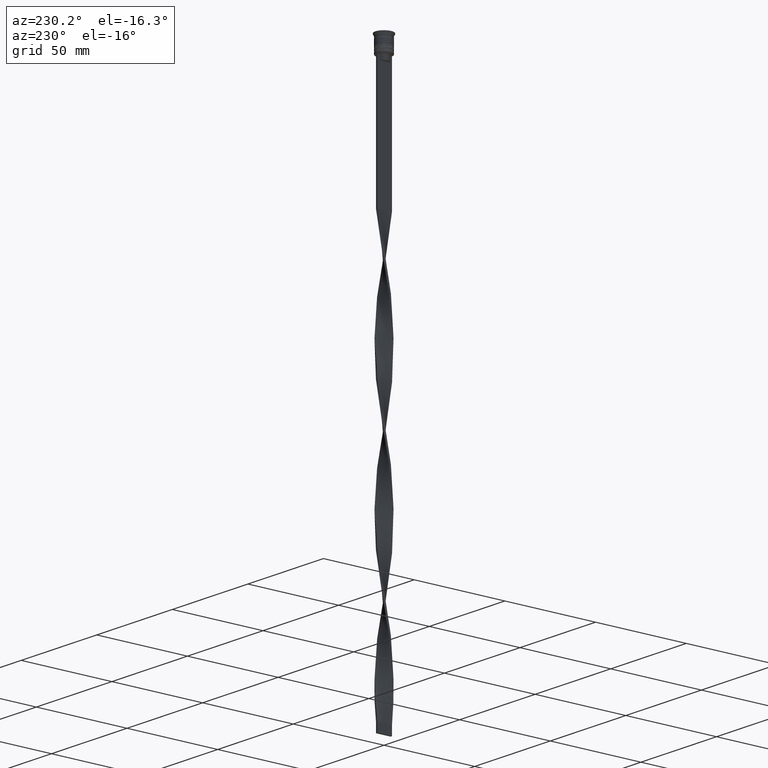
[diagram: clean part render]
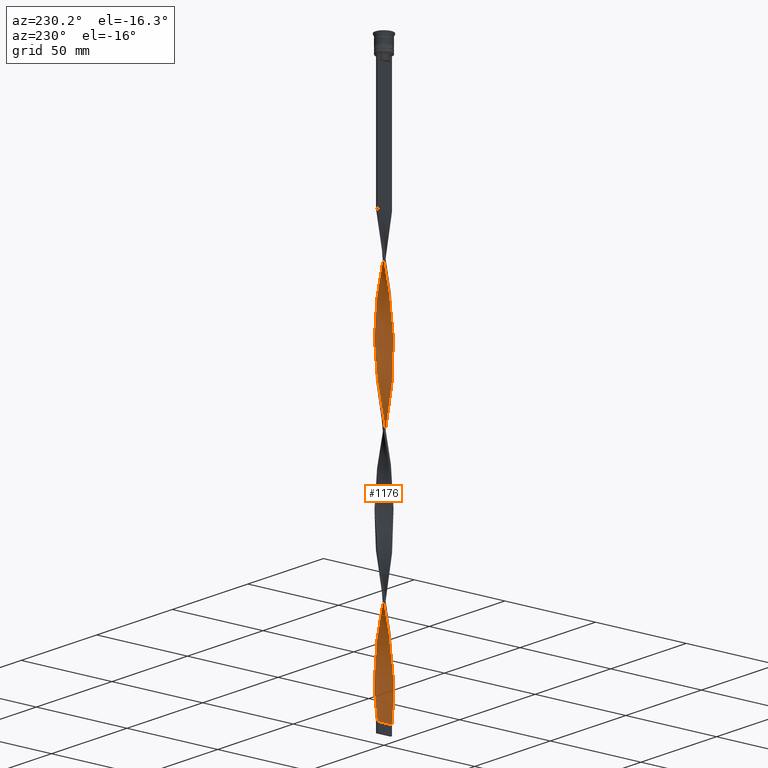
[diagram: same view with one face highlighted and labeled with its STEP entity id]
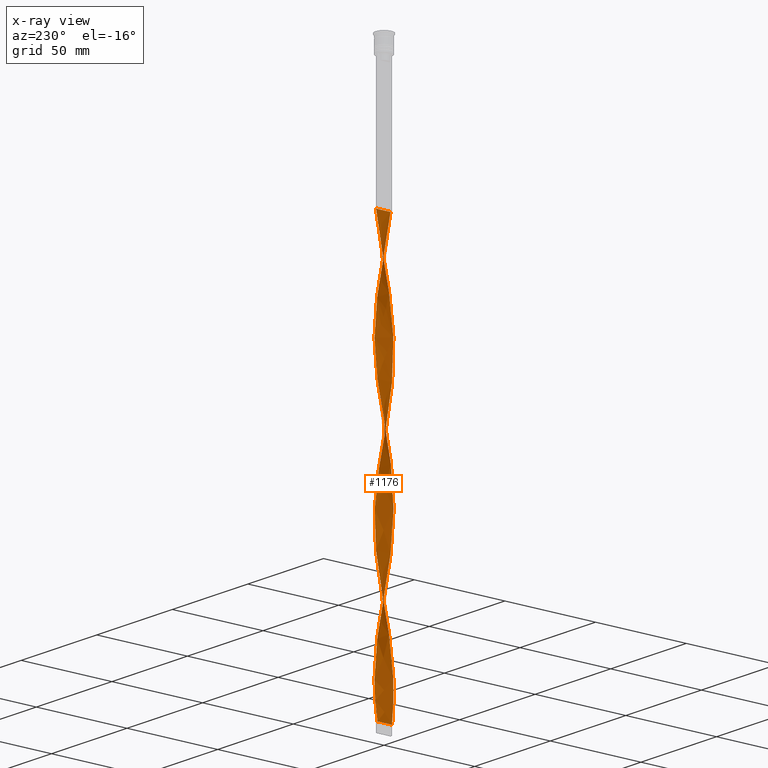
[diagram: x-ray of the same camera — body ghosted, the highlighted face saturated]
A machine part, auxiliary view. The second image highlights one B-rep face of the part: STEP entity #1176.
The next image is the same camera in x-ray: the body ghosted, the highlighted face saturated — about 0% of this face is hidden behind the body in this view.
In plain terms, the highlighted face is a freeform B-spline surface patch.
Its self-contained STEP definition (entity closure, byte-faithful):
#3 = CARTESIAN_POINT ( 'NONE',  ( 4.027627644762845627, 0.1679748646140053203, -264.7631578947368780 ) ) ;
#6 = CARTESIAN_POINT ( 'NONE',  ( 2.604254856879656632, 3.076988241839529348, -284.6315789473683822 ) ) ;
#10 = CARTESIAN_POINT ( 'NONE',  ( 0.1685505501969309927, -4.041431181225382474, -227.0131578947368212 ) ) ;
#19 = CARTESIAN_POINT ( 'NONE',  ( 1.771706497669052194, 3.620919232200196181, -221.0526315789473983 ) ) ;
#27 = CARTESIAN_POINT ( 'NONE',  ( 0.4989459690400829817, 4.014053836277128973, -298.5394736842104635 ) ) ;
#38 = CARTESIAN_POINT ( 'NONE',  ( -2.071744419492577816, -3.474111446233965061, -294.5657894736841627 ) ) ;
#44 = CARTESIAN_POINT ( 'NONE',  ( 3.633328892441398672, 1.777778512611467576, -123.6973684210526443 ) ) ;
#45 = CARTESIAN_POINT ( 'NONE',  ( 1.152832542896752965, 3.877183566532631076, -143.5657894736842195 ) ) ;
#46 = CARTESIAN_POINT ( 'NONE',  ( -2.349288341927602719, -3.292782951704460448, -211.1184210526315326 ) ) ;
#49 =( BOUNDED_SURFACE ( )  B_SPLINE_SURFACE ( 1, 2, ( 
 ( #3845, #3211, #1995, #1406, #2282, #3568, #3273, #1740, #1427, #2587, #2983, #2355, #816, #3300, #3001, #3530, #3387, #929, #2403, #3407, #1859, #2681, #860, #561, #2177, #2797, #3116, #2205, #665, #2196, #3819, #3438, #660, #3129, #2847, #1058, #531, #2327, #2037, #3890, #3851, #2343, #3217, #3279, #196, #1101, #1076, #2989, #746, #1766, #2019, #3260, #1456, #222, #143, #2303, #1371, #2593, #1691, #1979, #456, #885, #592, #610, #1160, #1513, #2100, #240, #3689, #3068, #2080, #2776, #19, #3709, #1732, #230, #3881, #481, #1465, #777, #795, #499, #2973, #2660, #1132, #637, #2844, #84, #3382, #2492, #3076, #3702, #924, #1257, #2823, #3128, #2154, #620, #2474, #943, #349, #2595, #1123, #3593, #2041, #2407, #3320, #3340, #1510, #2322, #838, #558, #2747, #1481, #2698 ),
 ( #522, #1733, #231, #3639, #855, #539, #2070, #2661, #3017, #3901, #2420, #1133, #250, #3334, #1794, #3658, #876, #3357, #582, #1820, #351, #2218, #903, #44, #3182, #3227, #1697, #1084, #696, #2812, #1880, #1271, #3114, #45, #2851, #2828, #1047, #3540, #2870, #465, #776, #3581, #2008, #1332, #1021, #794, #3252, #2952, #187, #2028, #2256, #3499, #210, #3288, #1463, #3917, #2370, #3613, #2068, #3169, #3797, #3522, #405, #1970, #986, #154, #87, #2220, #3777, #1914, #1638, #2871, #3824, #369, #1002, #2235, #3440, #3184, #3475, #662, #1898, #3149, #2829, #106, #3500, #1600, #3131, #1952, #2891, #2200, #126, #1352, #1292, #3858, #3899, #1130, #3615, #2352, #2045, #3719, #944, #324, #289, #3400, #6, #3112, #3960, #3938, #556, #270, #1816, #1258, #2437, #3035, #1579 ) ),
 .UNSPECIFIED., .F., .F., .F. ) 
 B_SPLINE_SURFACE_WITH_KNOTS ( ( 2, 2 ),
 ( 3, 2, 2, 2, 2, 2, 2, 2, 2, 2, 2, 2, 2, 2, 2, 2, 2, 2, 2, 2, 2, 2, 2, 2, 2, 2, 2, 2, 2, 2, 2, 2, 2, 2, 2, 2, 2, 2, 2, 2, 2, 2, 2, 2, 2, 2, 2, 2, 2, 2, 2, 2, 2, 2, 2, 2, 2, 3 ),
 ( 0.000000000000000000, 1.000000000000000000 ),
 ( 0.000000000000000000, 0.01315789473684210453, 0.02631578947368420907, 0.03947368421052631360, 0.05263157894736841813, 0.06578947368421052266, 0.07894736842105262720, 0.09210526315789473173, 0.1052631578947368363, 0.1184210526315789408, 0.1315789473684210453, 0.1447368421052631637, 0.1578947368421052544, 0.1710526315789473728, 0.1842105263157894635, 0.1973684210526315819, 0.2105263157894736725, 0.2236842105263157909, 0.2368421052631578816, 0.2500000000000000000, 0.2631578947368420907, 0.2763157894736842368, 0.2894736842105263275, 0.3026315789473684181, 0.3157894736842105088, 0.3289473684210526550, 0.3421052631578947456, 0.3552631578947368363, 0.3684210526315789269, 0.3815789473684210731, 0.3947368421052631637, 0.4078947368421052544, 0.4210526315789473450, 0.4342105263157894912, 0.4473684210526315819, 0.4605263157894736725, 0.4736842105263157632, 0.4868421052631579093, 0.5000000000000000000, 0.5131578947368421462, 0.5263157894736841813, 0.5394736842105263275, 0.5526315789473684736, 0.5657894736842105088, 0.5789473684210526550, 0.5921052631578946901, 0.6052631578947368363, 0.6184210526315789824, 0.6315789473684210176, 0.6447368421052631637, 0.6578947368421053099, 0.6710526315789473450, 0.6842105263157894912, 0.6973684210526315264, 0.7105263157894736725, 0.7236842105263158187, 0.7368421052631578538, 0.7500000000000000000 ),
 .UNSPECIFIED. ) 
 GEOMETRIC_REPRESENTATION_ITEM ( )  RATIONAL_B_SPLINE_SURFACE ( (
 ( 1.000000000000000000, 0.9965844930066698470, 1.000000000000000000, 0.9965844930066698470, 1.000000000000000000, 0.9965844930066698470, 1.000000000000000000, 0.9965844930066698470, 1.000000000000000000, 0.9965844930066698470, 1.000000000000000000, 0.9965844930066698470, 1.000000000000000000, 0.9965844930066698470, 1.000000000000000000, 0.9965844930066698470, 1.000000000000000000, 0.9965844930066698470, 1.000000000000000000, 0.9965844930066698470, 1.000000000000000000, 0.9965844930066698470, 1.000000000000000000, 0.9965844930066698470, 1.000000000000000000, 0.9965844930066698470, 1.000000000000000000, 0.9965844930066698470, 1.000000000000000000, 0.9965844930066698470, 1.000000000000000000, 0.9965844930066698470, 1.000000000000000000, 0.9965844930066698470, 1.000000000000000000, 0.9965844930066698470, 1.000000000000000000, 0.9965844930066698470, 1.000000000000000000, 0.9965844930066698470, 1.000000000000000000, 0.9965844930066698470, 1.000000000000000000, 0.9965844930066698470, 1.000000000000000000, 0.9965844930066698470, 1.000000000000000000, 0.9965844930066698470, 1.000000000000000000, 0.9965844930066698470, 1.000000000000000000, 0.9965844930066698470, 1.000000000000000000, 0.9965844930066698470, 1.000000000000000000, 0.9965844930066698470, 1.000000000000000000, 0.9965844930066698470, 1.000000000000000000, 0.9965844930066698470, 1.000000000000000000, 0.9965844930066698470, 1.000000000000000000, 0.9965844930066698470, 1.000000000000000000, 0.9965844930066698470, 1.000000000000000000, 0.9965844930066698470, 1.000000000000000000, 0.9965844930066698470, 1.000000000000000000, 0.9965844930066698470, 1.000000000000000000, 0.9965844930066698470, 1.000000000000000000, 0.9965844930066698470, 1.000000000000000000, 0.9965844930066698470, 1.000000000000000000, 0.9965844930066698470, 1.000000000000000000, 0.9965844930066698470, 1.000000000000000000, 0.9965844930066698470, 1.000000000000000000, 0.9965844930066698470, 1.000000000000000000, 0.9965844930066698470, 1.000000000000000000, 0.9965844930066698470, 1.000000000000000000, 0.9965844930066698470, 1.000000000000000000, 0.9965844930066698470, 1.000000000000000000, 0.9965844930066698470, 1.000000000000000000, 0.9965844930066698470, 1.000000000000000000, 0.9965844930066698470, 1.000000000000000000, 0.9965844930066698470, 1.000000000000000000, 0.9965844930066698470, 1.000000000000000000, 0.9965844930066698470, 1.000000000000000000, 0.9965844930066698470, 1.000000000000000000, 0.9965844930066698470, 1.000000000000000000, 0.9965844930066698470, 1.000000000000000000, 0.9965844930066698470, 1.000000000000000000),
 ( 1.000000000000000000, 0.9965844930066698470, 1.000000000000000000, 0.9965844930066698470, 1.000000000000000000, 0.9965844930066698470, 1.000000000000000000, 0.9965844930066698470, 1.000000000000000000, 0.9965844930066698470, 1.000000000000000000, 0.9965844930066698470, 1.000000000000000000, 0.9965844930066698470, 1.000000000000000000, 0.9965844930066698470, 1.000000000000000000, 0.9965844930066698470, 1.000000000000000000, 0.9965844930066698470, 1.000000000000000000, 0.9965844930066698470, 1.000000000000000000, 0.9965844930066698470, 1.000000000000000000, 0.9965844930066698470, 1.000000000000000000, 0.9965844930066698470, 1.000000000000000000, 0.9965844930066698470, 1.000000000000000000, 0.9965844930066698470, 1.000000000000000000, 0.9965844930066698470, 1.000000000000000000, 0.9965844930066698470, 1.000000000000000000, 0.9965844930066698470, 1.000000000000000000, 0.9965844930066698470, 1.000000000000000000, 0.9965844930066698470, 1.000000000000000000, 0.9965844930066698470, 1.000000000000000000, 0.9965844930066698470, 1.000000000000000000, 0.9965844930066698470, 1.000000000000000000, 0.9965844930066698470, 1.000000000000000000, 0.9965844930066698470, 1.000000000000000000, 0.9965844930066698470, 1.000000000000000000, 0.9965844930066698470, 1.000000000000000000, 0.9965844930066698470, 1.000000000000000000, 0.9965844930066698470, 1.000000000000000000, 0.9965844930066698470, 1.000000000000000000, 0.9965844930066698470, 1.000000000000000000, 0.9965844930066698470, 1.000000000000000000, 0.9965844930066698470, 1.000000000000000000, 0.9965844930066698470, 1.000000000000000000, 0.9965844930066698470, 1.000000000000000000, 0.9965844930066698470, 1.000000000000000000, 0.9965844930066698470, 1.000000000000000000, 0.9965844930066698470, 1.000000000000000000, 0.9965844930066698470, 1.000000000000000000, 0.9965844930066698470, 1.000000000000000000, 0.9965844930066698470, 1.000000000000000000, 0.9965844930066698470, 1.000000000000000000, 0.9965844930066698470, 1.000000000000000000, 0.9965844930066698470, 1.000000000000000000, 0.9965844930066698470, 1.000000000000000000, 0.9965844930066698470, 1.000000000000000000, 0.9965844930066698470, 1.000000000000000000, 0.9965844930066698470, 1.000000000000000000, 0.9965844930066698470, 1.000000000000000000, 0.9965844930066698470, 1.000000000000000000, 0.9965844930066698470, 1.000000000000000000, 0.9965844930066698470, 1.000000000000000000, 0.9965844930066698470, 1.000000000000000000, 0.9965844930066698470, 1.000000000000000000, 0.9965844930066698470, 1.000000000000000000, 0.9965844930066698470, 1.000000000000000000) ) ) 
 REPRESENTATION_ITEM ( '' )  SURFACE ( )  );
#62 = DIRECTION ( 'NONE',  ( 0.000000000000000000, 1.000000000000000000, 0.000000000000000000 ) ) ;
#84 = CARTESIAN_POINT ( 'NONE',  ( -2.859221371831710989, 2.861193531974598692, -250.8552631578947683 ) ) ;
#87 = CARTESIAN_POINT ( 'NONE',  ( -2.604254856879658409, -3.076988241839528015, -209.1315789473684390 ) ) ;
#106 = CARTESIAN_POINT ( 'NONE',  ( 2.615308476010501426, -3.085731170380873412, -242.9078947368421098 ) ) ;
#122 = CARTESIAN_POINT ( 'NONE',  ( -0.8258892559684176682, -3.945618701404880024, -221.0526315789473983 ) ) ;
#126 = CARTESIAN_POINT ( 'NONE',  ( 3.863941018946714490, -1.148895035284349442, -256.8157894736842195 ) ) ;
#143 = CARTESIAN_POINT ( 'NONE',  ( 3.754858320186921894, -1.466642081532861797, -185.2894736842105203 ) ) ;
#154 = CARTESIAN_POINT ( 'NONE',  ( -2.859221371831710989, -2.861193531974598248, -207.1447368421052317 ) ) ;
#183 = CARTESIAN_POINT ( 'NONE',  ( 2.062280596060474647, -3.463668393930408929, -169.3947368421052602 ) ) ;
#187 = CARTESIAN_POINT ( 'NONE',  ( -3.281536428505396064, 2.341264331166400314, -173.3684210526315610 ) ) ;
#196 = CARTESIAN_POINT ( 'NONE',  ( 1.464052696545049548, -3.755868701344493132, -165.4210526315789593 ) ) ;
#199 = CARTESIAN_POINT ( 'NONE',  ( -3.959141175778332133, -0.8287197540840012255, -123.6973684210526443 ) ) ;
#210 = CARTESIAN_POINT ( 'NONE',  ( -3.863941018946714046, 1.148895035284350996, -181.3157894736842195 ) ) ;
#212 = CARTESIAN_POINT ( 'NONE',  ( 3.475539122107559553, -2.069348470232189374, -99.85526315789472562 ) ) ;
#222 = CARTESIAN_POINT ( 'NONE',  ( 3.633328892441398672, -1.777778512611468464, -183.3026315789473699 ) ) ;
#225 = CARTESIAN_POINT ( 'NONE',  ( -3.876387747932444228, 1.155505650454256017, -111.7763157894736850 ) ) ;
#230 = CARTESIAN_POINT ( 'NONE',  ( 0.8314494498030688963, 3.958568818774615750, -227.0131578947368212 ) ) ;
#231 = CARTESIAN_POINT ( 'NONE',  ( 1.151559012824296735, -3.863147918470522413, -81.97368421052631504 ) ) ;
#240 = CARTESIAN_POINT ( 'NONE',  ( 3.087533734903235683, 2.613180192100605037, -211.1184210526315326 ) ) ;
#243 = CARTESIAN_POINT ( 'NONE',  ( 3.622139992111328866, 1.769209393358442073, -205.1578947368420813 ) ) ;
#250 = CARTESIAN_POINT ( 'NONE',  ( 3.622139992111327533, -1.769209393358443627, -101.8421052631579045 ) ) ;
#260 = CARTESIAN_POINT ( 'NONE',  ( 2.071744419492578260, 3.474111446233964617, -219.0657894736841911 ) ) ;
#270 = CARTESIAN_POINT ( 'NONE',  ( 1.152832542896752965, 3.877183566532631076, -294.5657894736841627 ) ) ;
#289 = CARTESIAN_POINT ( 'NONE',  ( 3.075191833988901280, 2.606375871620971285, -280.6578947368420813 ) ) ;
#318 = CARTESIAN_POINT ( 'NONE',  ( -1.471668575845527682, -3.767727018166428188, -298.5394736842104635 ) ) ;
#322 = CARTESIAN_POINT ( 'NONE',  ( 1.775272850193347685, 3.634553836156354745, -290.5921052631578050 ) ) ;
#324 = CARTESIAN_POINT ( 'NONE',  ( 3.291162296146090682, 2.351558211267345211, -278.6710526315789025 ) ) ;
#329 = CARTESIAN_POINT ( 'NONE',  ( 1.471668575845526350, -3.767727018166428632, -234.9605263157894228 ) ) ;
#349 = CARTESIAN_POINT ( 'NONE',  ( -3.863941018946714934, -1.148895035284348332, -276.6842105263158373 ) ) ;
#351 = CARTESIAN_POINT ( 'NONE',  ( 3.945048299290513150, 0.8286096283926639439, -117.7368421052631646 ) ) ;
#369 = CARTESIAN_POINT ( 'NONE',  ( -0.4989459690400818159, -4.014053836277128973, -223.0394736842104635 ) ) ;
#375 = CARTESIAN_POINT ( 'NONE',  ( -3.768740862115095513, 1.469070316484699212, -179.3289473684210691 ) ) ;
#405 = CARTESIAN_POINT ( 'NONE',  ( -3.462245594293745121, -2.064668361939406616, -201.1842105263158089 ) ) ;
#410 = CARTESIAN_POINT ( 'NONE',  ( 1.151559012824296735, -3.863147918470522413, -81.97368421052631504 ) ) ;
#414 = CARTESIAN_POINT ( 'NONE',  ( -4.027627644762845627, -0.1679748646140039048, -189.2631578947368496 ) ) ;
#432 = CARTESIAN_POINT ( 'NONE',  ( -3.633328892441399116, -1.777778512611467132, -199.1973684210526017 ) ) ;
#456 = CARTESIAN_POINT ( 'NONE',  ( 4.000343807327721102, 0.4972418155935300343, -197.2105263157894797 ) ) ;
#465 = CARTESIAN_POINT ( 'NONE',  ( -0.8314494498030657876, 3.958568818774615750, -155.4868421052631220 ) ) ;
#476 = CARTESIAN_POINT ( 'NONE',  ( 0.8314494498030690073, 3.958568818774615750, -227.0131578947368212 ) ) ;
#481 = CARTESIAN_POINT ( 'NONE',  ( 0.1685505501969329079, 4.041431181225382474, -230.9868421052631220 ) ) ;
#486 = CARTESIAN_POINT ( 'NONE',  ( 0.8258892559684172241, 3.945618701404880024, -145.5526315789473699 ) ) ;
#492 = CARTESIAN_POINT ( 'NONE',  ( 0.1651977094215738573, -4.027742508751257056, -157.4736842105263293 ) ) ;
#498 = CARTESIAN_POINT ( 'NONE',  ( 2.615308476010500982, -3.085731170380873412, -91.90789473684209554 ) ) ;
#499 = CARTESIAN_POINT ( 'NONE',  ( -1.152832542896750967, 3.877183566532631520, -238.9342105263157521 ) ) ;
#513 = CARTESIAN_POINT ( 'NONE',  ( 2.859221371831710101, -2.861193531974599580, -175.3552631578947398 ) ) ;
#522 = CARTESIAN_POINT ( 'NONE',  ( 0.5000000000000000000, -4.000000000000000000, -78.00000000000000000 ) ) ;
#531 = CARTESIAN_POINT ( 'NONE',  ( -1.151559012824297401, -3.863147918470522413, -149.5263157894736707 ) ) ;
#534 = CARTESIAN_POINT ( 'NONE',  ( 4.041546438877109182, 0.1657638771030590097, -195.2236842105263008 ) ) ;
#539 = CARTESIAN_POINT ( 'NONE',  ( 2.071744419492575595, -3.474111446233965506, -87.93421052631578050 ) ) ;
#550 = CARTESIAN_POINT ( 'NONE',  ( 3.087533734903235683, 2.613180192100605037, -211.1184210526315326 ) ) ;
#556 = CARTESIAN_POINT ( 'NONE',  ( 1.464052696545050436, 3.755868701344492688, -292.5789473684210407 ) ) ;
#558 = CARTESIAN_POINT ( 'NONE',  ( -1.471668575845527682, -3.767727018166428188, -298.5394736842104635 ) ) ;
#561 = CARTESIAN_POINT ( 'NONE',  ( -3.959141175778332133, -0.8287197540840011145, -123.6973684210526443 ) ) ;
#574 = CARTESIAN_POINT ( 'NONE',  ( -0.4999999999999994449, 4.000000000000000000, -304.5000000000000000 ) ) ;
#582 = CARTESIAN_POINT ( 'NONE',  ( 4.027627644762845627, 0.1679748646140053203, -113.7631578947368496 ) ) ;
#592 = CARTESIAN_POINT ( 'NONE',  ( 3.863941018946714490, 1.148895035284349442, -201.1842105263158089 ) ) ;
#595 = CARTESIAN_POINT ( 'NONE',  ( -1.775272850193347685, 3.634553836156354745, -242.9078947368421098 ) ) ;
#604 = CARTESIAN_POINT ( 'NONE',  ( 3.863941018946714490, -1.148895035284349442, -256.8157894736842195 ) ) ;
#610 = CARTESIAN_POINT ( 'NONE',  ( 3.768740862115096846, 1.469070316484694327, -203.1710526315789309 ) ) ;
#613 = CARTESIAN_POINT ( 'NONE',  ( -2.604254856879656188, 3.076988241839530236, -248.8684210526315610 ) ) ;
#617 = CARTESIAN_POINT ( 'NONE',  ( 3.075191833988901280, 2.606375871620971285, -280.6578947368420813 ) ) ;
#620 = CARTESIAN_POINT ( 'NONE',  ( -4.041546438877108294, -0.1657638771030611746, -270.7236842105262440 ) ) ;
#631 = CARTESIAN_POINT ( 'NONE',  ( -3.281536428505397396, -2.341264331166397206, -284.6315789473683822 ) ) ;
#637 = CARTESIAN_POINT ( 'NONE',  ( -2.349288341927600499, 3.292782951704461780, -246.8815789473684674 ) ) ;
#660 = CARTESIAN_POINT ( 'NONE',  ( -2.343526447751539177, -3.279921308307419459, -141.5789473684210407 ) ) ;
#662 = CARTESIAN_POINT ( 'NONE',  ( 1.471668575845526350, -3.767727018166428632, -234.9605263157894228 ) ) ;
#665 = CARTESIAN_POINT ( 'NONE',  ( -3.281536428505397396, -2.341264331166397206, -133.6315789473684390 ) ) ;
#692 = CARTESIAN_POINT ( 'NONE',  ( -2.604254856879656188, 3.076988241839530236, -97.86842105263157521 ) ) ;
#696 = CARTESIAN_POINT ( 'NONE',  ( 2.604254856879656632, 3.076988241839529348, -133.6315789473684390 ) ) ;
#714 = CARTESIAN_POINT ( 'NONE',  ( 2.071744419492576039, -3.474111446233965506, -238.9342105263157805 ) ) ;
#728 = CARTESIAN_POINT ( 'NONE',  ( -3.876387747932445560, -1.155505650454253352, -195.2236842105263008 ) ) ;
#746 = CARTESIAN_POINT ( 'NONE',  ( 2.604254856879654412, -3.076988241839531568, -173.3684210526315610 ) ) ;
#771 = CARTESIAN_POINT ( 'NONE',  ( -1.151559012824297401, -3.863147918470522413, -149.5263157894736707 ) ) ;
#775 = CARTESIAN_POINT ( 'NONE',  ( -2.615308476010500538, 3.085731170380874300, -167.4078947368420813 ) ) ;
#776 = CARTESIAN_POINT ( 'NONE',  ( -1.151559012824296291, 3.863147918470523301, -157.4736842105263293 ) ) ;
#777 = CARTESIAN_POINT ( 'NONE',  ( -0.4989459690400814273, 4.014053836277128973, -234.9605263157894228 ) ) ;
#789 = CARTESIAN_POINT ( 'NONE',  ( 3.754858320186921894, -1.466642081532861797, -185.2894736842105203 ) ) ;
#794 = CARTESIAN_POINT ( 'NONE',  ( -2.615308476010500538, 3.085731170380873856, -167.4078947368420813 ) ) ;
#795 = CARTESIAN_POINT ( 'NONE',  ( -0.8258892559684165580, 3.945618701404880024, -236.9473684210526301 ) ) ;
#799 = CARTESIAN_POINT ( 'NONE',  ( -0.5000000000000005551, -4.000000000000000000, -304.5000000000000000 ) ) ;
#805 = CARTESIAN_POINT ( 'NONE',  ( -2.343526447751539177, -3.279921308307419459, -141.5789473684210407 ) ) ;
#813 = CARTESIAN_POINT ( 'NONE',  ( 3.281536428505396952, -2.341264331166398982, -97.86842105263157521 ) ) ;
#816 = CARTESIAN_POINT ( 'NONE',  ( -3.075191833988900836, 2.606375871620972173, -101.8421052631579045 ) ) ;
#826 = CARTESIAN_POINT ( 'NONE',  ( -3.622139992111327977, -1.769209393358442517, -129.6578947368421098 ) ) ;
#838 = CARTESIAN_POINT ( 'NONE',  ( -1.771706497669051972, -3.620919232200196625, -296.5526315789473983 ) ) ;
#848 = CARTESIAN_POINT ( 'NONE',  ( 3.768740862115096846, 1.469070316484694327, -203.1710526315789593 ) ) ;
#855 = CARTESIAN_POINT ( 'NONE',  ( 1.771706497669051306, -3.620919232200196625, -85.94736842105263008 ) ) ;
#856 =( BOUNDED_CURVE ( )  B_SPLINE_CURVE ( 2, ( #3269, #2895, #410, #3782, #1420, #2659, #1152, #498, #2971, #1131, #813, #212, #2875, #1030, #3919, #2558, #1447, #3900, #3880, #1110, #2373, #1757, #1007, #3506, #2047, #2998, #3291, #1957, #1464, #2240, #1663, #3480, #3587, #2015, #486, #1721, #2959, #1327, #1041, #1059, #1756, #2997, #1398, #2678, #3560, #775, #1150, #2951, #2369, #2485, #2090, #375, #1306, #3034, #957, #3487, #414, #2881, #1367, #728, #1961, #432, #2767, #2569, #2460, #2477, #1539, #46, #1215, #3517, #947, #1882, #122, #1581, #1966, #10, #3199, #3403, #1856, #329, #2497, #714, #2794, #2749, #1947, #3983, #1653, #2439, #3679, #905, #604, #872, #2108, #3634, #3, #3377, #2395, #1230, #2087, #1193, #1498, #3397, #617, #2742, #2132, #1851, #3090, #322, #1555, #2788, #2416, #27, #3653, #3350, #2699 ),
 .UNSPECIFIED., .F., .T. ) 
 B_SPLINE_CURVE_WITH_KNOTS ( ( 3, 2, 2, 2, 2, 2, 2, 2, 2, 2, 2, 2, 2, 2, 2, 2, 2, 2, 2, 2, 2, 2, 2, 2, 2, 2, 2, 2, 2, 2, 2, 2, 2, 2, 2, 2, 2, 2, 2, 2, 2, 2, 2, 2, 2, 2, 2, 2, 2, 2, 2, 2, 2, 2, 2, 2, 2, 3 ),
 ( 0.000000000000000000, 0.01315789473684210453, 0.02631578947368420907, 0.03947368421052631360, 0.05263157894736841813, 0.06578947368421052266, 0.07894736842105262720, 0.09210526315789473173, 0.1052631578947368363, 0.1184210526315789408, 0.1315789473684210453, 0.1447368421052631637, 0.1578947368421052544, 0.1710526315789473728, 0.1842105263157894635, 0.1973684210526315541, 0.2105263157894736725, 0.2236842105263157909, 0.2368421052631578816, 0.2500000000000000000, 0.2631578947368420907, 0.2763157894736842368, 0.2894736842105263275, 0.3026315789473684181, 0.3157894736842105088, 0.3289473684210526550, 0.3421052631578947456, 0.3552631578947368918, 0.3684210526315789269, 0.3815789473684210731, 0.3947368421052631082, 0.4078947368421052544, 0.4210526315789473450, 0.4342105263157895467, 0.4473684210526315819, 0.4605263157894736725, 0.4736842105263157632, 0.4868421052631579093, 0.5000000000000000000, 0.5131578947368421462, 0.5263157894736841813, 0.5394736842105263275, 0.5526315789473684736, 0.5657894736842105088, 0.5789473684210526550, 0.5921052631578946901, 0.6052631578947368363, 0.6184210526315789824, 0.6315789473684210176, 0.6447368421052631637, 0.6578947368421053099, 0.6710526315789473450, 0.6842105263157894912, 0.6973684210526315264, 0.7105263157894737835, 0.7236842105263158187, 0.7368421052631578538, 0.7500000000000000000 ),
 .UNSPECIFIED. ) 
 CURVE ( )  GEOMETRIC_REPRESENTATION_ITEM ( )  RATIONAL_B_SPLINE_CURVE ( ( 1.000000000000000000, 0.9965844930066698470, 1.000000000000000000, 0.9965844930066698470, 1.000000000000000000, 0.9965844930066698470, 1.000000000000000000, 0.9965844930066698470, 1.000000000000000000, 0.9965844930066698470, 1.000000000000000000, 0.9965844930066698470, 1.000000000000000000, 0.9965844930066698470, 1.000000000000000000, 0.9965844930066698470, 1.000000000000000000, 0.9965844930066698470, 1.000000000000000000, 0.9965844930066698470, 1.000000000000000000, 0.9965844930066698470, 1.000000000000000000, 0.9965844930066698470, 1.000000000000000000, 0.9965844930066698470, 1.000000000000000000, 0.9965844930066698470, 1.000000000000000000, 0.9965844930066698470, 1.000000000000000000, 0.9965844930066698470, 1.000000000000000000, 0.9965844930066698470, 1.000000000000000000, 0.9965844930066698470, 1.000000000000000000, 0.9965844930066698470, 1.000000000000000000, 0.9965844930066698470, 1.000000000000000000, 0.9965844930066698470, 1.000000000000000000, 0.9965844930066698470, 1.000000000000000000, 0.9965844930066698470, 1.000000000000000000, 0.9965844930066698470, 1.000000000000000000, 0.9965844930066698470, 1.000000000000000000, 0.9965844930066698470, 1.000000000000000000, 0.9965844930066698470, 1.000000000000000000, 0.9965844930066698470, 1.000000000000000000, 0.9965844930066698470, 1.000000000000000000, 0.9965844930066698470, 1.000000000000000000, 0.9965844930066698470, 1.000000000000000000, 0.9965844930066698470, 1.000000000000000000, 0.9965844930066698470, 1.000000000000000000, 0.9965844930066698470, 1.000000000000000000, 0.9965844930066698470, 1.000000000000000000, 0.9965844930066698470, 1.000000000000000000, 0.9965844930066698470, 1.000000000000000000, 0.9965844930066698470, 1.000000000000000000, 0.9965844930066698470, 1.000000000000000000, 0.9965844930066698470, 1.000000000000000000, 0.9965844930066698470, 1.000000000000000000, 0.9965844930066698470, 1.000000000000000000, 0.9965844930066698470, 1.000000000000000000, 0.9965844930066698470, 1.000000000000000000, 0.9965844930066698470, 1.000000000000000000, 0.9965844930066698470, 1.000000000000000000, 0.9965844930066698470, 1.000000000000000000, 0.9965844930066698470, 1.000000000000000000, 0.9965844930066698470, 1.000000000000000000, 0.9965844930066698470, 1.000000000000000000, 0.9965844930066698470, 1.000000000000000000, 0.9965844930066698470, 1.000000000000000000, 0.9965844930066698470, 1.000000000000000000, 0.9965844930066698470, 1.000000000000000000, 0.9965844930066698470, 1.000000000000000000, 0.9965844930066698470, 1.000000000000000000, 0.9965844930066698470, 1.000000000000000000 ) ) 
 REPRESENTATION_ITEM ( '' )  );
#859 = VERTEX_POINT ( 'NONE', #799 ) ;
#860 = CARTESIAN_POINT ( 'NONE',  ( -4.000343807327721102, -0.4972418155935313666, -121.7105263157894797 ) ) ;
#869 = CARTESIAN_POINT ( 'NONE',  ( -3.291162296146090682, 2.351558211267345211, -254.8289473684210407 ) ) ;
#872 = CARTESIAN_POINT ( 'NONE',  ( 3.959141175778332133, -0.8287197540840016696, -258.8026315789473415 ) ) ;
#876 = CARTESIAN_POINT ( 'NONE',  ( 4.000343807327721102, -0.4972418155935317552, -109.7894736842105203 ) ) ;
#885 = CARTESIAN_POINT ( 'NONE',  ( 3.959141175778333022, 0.8287197540840007814, -199.1973684210526017 ) ) ;
#903 = CARTESIAN_POINT ( 'NONE',  ( 3.754858320186921894, 1.466642081532861797, -121.7105263157894797 ) ) ;
#905 = CARTESIAN_POINT ( 'NONE',  ( 3.768740862115096402, -1.469070316484696770, -254.8289473684210407 ) ) ;
#917 = CARTESIAN_POINT ( 'NONE',  ( -3.633328892441399116, 1.777778512611468020, -258.8026315789473415 ) ) ;
#924 = CARTESIAN_POINT ( 'NONE',  ( -3.754858320186921894, 1.466642081532862241, -260.7894736842105203 ) ) ;
#929 = CARTESIAN_POINT ( 'NONE',  ( -3.876387747932444228, 1.155505650454256239, -111.7763157894736850 ) ) ;
#935 = CARTESIAN_POINT ( 'NONE',  ( -0.4989459690400814829, 4.014053836277128973, -234.9605263157894228 ) ) ;
#943 = CARTESIAN_POINT ( 'NONE',  ( -3.959141175778332133, -0.8287197540840011145, -274.6973684210525448 ) ) ;
#944 = CARTESIAN_POINT ( 'NONE',  ( 3.462245594293745565, 2.064668361939405727, -276.6842105263158373 ) ) ;
#947 = CARTESIAN_POINT ( 'NONE',  ( -1.464052696545052212, -3.755868701344492244, -217.0789473684210407 ) ) ;
#957 = CARTESIAN_POINT ( 'NONE',  ( -4.000343807327721102, 0.4972418155935313666, -185.2894736842105203 ) ) ;
#986 = CARTESIAN_POINT ( 'NONE',  ( -3.075191833988901724, -2.606375871620970841, -205.1578947368420813 ) ) ;
#995 =( BOUNDED_CURVE ( )  B_SPLINE_CURVE ( 2, ( #2550, #1393, #2216, #2613, #3854, #2532, #3774, #1635, #1018, #3471, #692, #1926, #3162, #3179, #2632, #2346, #1165, #225, #1122, #2964, #3553, #2714, #1726, #199, #2688, #3631, #826, #3873, #3592, #2363, #1104, #2083, #805, #1783, #2040, #2022, #771, #2063, #3027, #3263, #492, #2003, #3608, #3282, #1441, #3308, #183, #3893, #2653, #513, #1750, #2945, #2992, #1459, #789, #2673, #3912, #1144, #1079, #534, #2390, #1769, #3010, #848, #243, #3326, #2331, #550, #1475, #3576, #3928, #260, #1494, #2306, #3245, #476, #1712, #1415, #1189, #935, #3994, #3345, #1805, #595, #2167, #2412, #613, #3650, #3713, #869, #3730, #917, #1592, #1830, #3071, #1572, #2486, #3413, #1516, #1224, #1248, #3105, #3955, #3694, #631, #3669, #2738, #2148, #2468, #38, #3394, #318, #2103, #1867, #2451 ),
 .UNSPECIFIED., .F., .T. ) 
 B_SPLINE_CURVE_WITH_KNOTS ( ( 3, 2, 2, 2, 2, 2, 2, 2, 2, 2, 2, 2, 2, 2, 2, 2, 2, 2, 2, 2, 2, 2, 2, 2, 2, 2, 2, 2, 2, 2, 2, 2, 2, 2, 2, 2, 2, 2, 2, 2, 2, 2, 2, 2, 2, 2, 2, 2, 2, 2, 2, 2, 2, 2, 2, 2, 2, 3 ),
 ( 0.000000000000000000, 0.01315789473684210453, 0.02631578947368420907, 0.03947368421052631360, 0.05263157894736841813, 0.06578947368421052266, 0.07894736842105262720, 0.09210526315789473173, 0.1052631578947368363, 0.1184210526315789408, 0.1315789473684210453, 0.1447368421052631637, 0.1578947368421052544, 0.1710526315789473728, 0.1842105263157894635, 0.1973684210526315541, 0.2105263157894736725, 0.2236842105263157909, 0.2368421052631578816, 0.2500000000000000000, 0.2631578947368420907, 0.2763157894736842368, 0.2894736842105263275, 0.3026315789473684181, 0.3157894736842105088, 0.3289473684210526550, 0.3421052631578947456, 0.3552631578947368918, 0.3684210526315789269, 0.3815789473684210731, 0.3947368421052631082, 0.4078947368421052544, 0.4210526315789473450, 0.4342105263157895467, 0.4473684210526315819, 0.4605263157894736725, 0.4736842105263157632, 0.4868421052631579093, 0.5000000000000000000, 0.5131578947368421462, 0.5263157894736841813, 0.5394736842105263275, 0.5526315789473684736, 0.5657894736842105088, 0.5789473684210526550, 0.5921052631578946901, 0.6052631578947368363, 0.6184210526315789824, 0.6315789473684210176, 0.6447368421052631637, 0.6578947368421053099, 0.6710526315789473450, 0.6842105263157894912, 0.6973684210526315264, 0.7105263157894737835, 0.7236842105263158187, 0.7368421052631578538, 0.7500000000000000000 ),
 .UNSPECIFIED. ) 
 CURVE ( )  GEOMETRIC_REPRESENTATION_ITEM ( )  RATIONAL_B_SPLINE_CURVE ( ( 1.000000000000000000, 0.9965844930066698470, 1.000000000000000000, 0.9965844930066698470, 1.000000000000000000, 0.9965844930066698470, 1.000000000000000000, 0.9965844930066698470, 1.000000000000000000, 0.9965844930066698470, 1.000000000000000000, 0.9965844930066698470, 1.000000000000000000, 0.9965844930066698470, 1.000000000000000000, 0.9965844930066698470, 1.000000000000000000, 0.9965844930066698470, 1.000000000000000000, 0.9965844930066698470, 1.000000000000000000, 0.9965844930066698470, 1.000000000000000000, 0.9965844930066698470, 1.000000000000000000, 0.9965844930066698470, 1.000000000000000000, 0.9965844930066698470, 1.000000000000000000, 0.9965844930066698470, 1.000000000000000000, 0.9965844930066698470, 1.000000000000000000, 0.9965844930066698470, 1.000000000000000000, 0.9965844930066698470, 1.000000000000000000, 0.9965844930066698470, 1.000000000000000000, 0.9965844930066698470, 1.000000000000000000, 0.9965844930066698470, 1.000000000000000000, 0.9965844930066698470, 1.000000000000000000, 0.9965844930066698470, 1.000000000000000000, 0.9965844930066698470, 1.000000000000000000, 0.9965844930066698470, 1.000000000000000000, 0.9965844930066698470, 1.000000000000000000, 0.9965844930066698470, 1.000000000000000000, 0.9965844930066698470, 1.000000000000000000, 0.9965844930066698470, 1.000000000000000000, 0.9965844930066698470, 1.000000000000000000, 0.9965844930066698470, 1.000000000000000000, 0.9965844930066698470, 1.000000000000000000, 0.9965844930066698470, 1.000000000000000000, 0.9965844930066698470, 1.000000000000000000, 0.9965844930066698470, 1.000000000000000000, 0.9965844930066698470, 1.000000000000000000, 0.9965844930066698470, 1.000000000000000000, 0.9965844930066698470, 1.000000000000000000, 0.9965844930066698470, 1.000000000000000000, 0.9965844930066698470, 1.000000000000000000, 0.9965844930066698470, 1.000000000000000000, 0.9965844930066698470, 1.000000000000000000, 0.9965844930066698470, 1.000000000000000000, 0.9965844930066698470, 1.000000000000000000, 0.9965844930066698470, 1.000000000000000000, 0.9965844930066698470, 1.000000000000000000, 0.9965844930066698470, 1.000000000000000000, 0.9965844930066698470, 1.000000000000000000, 0.9965844930066698470, 1.000000000000000000, 0.9965844930066698470, 1.000000000000000000, 0.9965844930066698470, 1.000000000000000000, 0.9965844930066698470, 1.000000000000000000, 0.9965844930066698470, 1.000000000000000000, 0.9965844930066698470, 1.000000000000000000, 0.9965844930066698470, 1.000000000000000000, 0.9965844930066698470, 1.000000000000000000, 0.9965844930066698470, 1.000000000000000000 ) ) 
 REPRESENTATION_ITEM ( '' )  );
#1002 = CARTESIAN_POINT ( 'NONE',  ( -0.1651977094215772157, -4.027742508751256167, -225.0263157894736992 ) ) ;
#1007 = CARTESIAN_POINT ( 'NONE',  ( 3.754858320186921894, 1.466642081532861797, -121.7105263157894797 ) ) ;
#1018 = CARTESIAN_POINT ( 'NONE',  ( -2.062280596060474647, 3.463668393930408484, -93.89473684210526017 ) ) ;
#1021 = CARTESIAN_POINT ( 'NONE',  ( -2.343526447751538289, 3.279921308307419903, -165.4210526315789593 ) ) ;
#1030 = CARTESIAN_POINT ( 'NONE',  ( 3.768740862115096402, -1.469070316484696770, -103.8289473684210407 ) ) ;
#1041 = CARTESIAN_POINT ( 'NONE',  ( -0.4999999999999994449, 4.000000000000000000, -153.5000000000000000 ) ) ;
#1047 = CARTESIAN_POINT ( 'NONE',  ( 0.1651977094215750508, 4.027742508751256167, -149.5263157894736707 ) ) ;
#1058 = CARTESIAN_POINT ( 'NONE',  ( -1.471668575845527682, -3.767727018166428188, -147.5394736842105203 ) ) ;
#1059 = CARTESIAN_POINT ( 'NONE',  ( -0.8314494498030657876, 3.958568818774615750, -155.4868421052631504 ) ) ;
#1076 = CARTESIAN_POINT ( 'NONE',  ( 2.062280596060474647, -3.463668393930408929, -169.3947368421052602 ) ) ;
#1079 = CARTESIAN_POINT ( 'NONE',  ( 4.027627644762845627, -0.1679748646140054313, -193.2368421052631504 ) ) ;
#1084 = CARTESIAN_POINT ( 'NONE',  ( 2.859221371831710989, 2.861193531974598692, -131.6447368421052602 ) ) ;
#1101 = CARTESIAN_POINT ( 'NONE',  ( 1.775272850193346796, -3.634553836156355633, -167.4078947368420813 ) ) ;
#1104 = CARTESIAN_POINT ( 'NONE',  ( -2.851421105456868776, -2.849455681240740113, -137.6052631578947398 ) ) ;
#1110 = CARTESIAN_POINT ( 'NONE',  ( 4.013708850648581183, 0.5017136063310724259, -115.7499999999999858 ) ) ;
#1122 = CARTESIAN_POINT ( 'NONE',  ( -3.945048299290513150, 0.8286096283926643880, -113.7631578947368496 ) ) ;
#1123 = CARTESIAN_POINT ( 'NONE',  ( -3.622139992111327977, -1.769209393358442517, -280.6578947368420813 ) ) ;
#1130 = CARTESIAN_POINT ( 'NONE',  ( 4.013708850648581183, 0.5017136063310724259, -266.7499999999999432 ) ) ;
#1131 = CARTESIAN_POINT ( 'NONE',  ( 3.087533734903234350, -2.613180192100606813, -95.88157894736841058 ) ) ;
#1132 = CARTESIAN_POINT ( 'NONE',  ( -2.062280596060474647, 3.463668393930408484, -244.8947368421052886 ) ) ;
#1133 = CARTESIAN_POINT ( 'NONE',  ( 3.475539122107559997, -2.069348470232189818, -99.85526315789472562 ) ) ;
#1144 = CARTESIAN_POINT ( 'NONE',  ( 4.013708850648581183, -0.5017136063310734251, -191.2499999999999716 ) ) ;
#1150 = CARTESIAN_POINT ( 'NONE',  ( -2.851421105456868332, 2.849455681240740557, -169.3947368421052602 ) ) ;
#1152 = CARTESIAN_POINT ( 'NONE',  ( 2.343526447751538733, -3.279921308307419903, -89.92105263157894512 ) ) ;
#1160 = CARTESIAN_POINT ( 'NONE',  ( 3.622139992111328866, 1.769209393358442073, -205.1578947368420813 ) ) ;
#1165 = CARTESIAN_POINT ( 'NONE',  ( -3.754858320186921894, 1.466642081532862241, -109.7894736842105203 ) ) ;
#1174 = CARTESIAN_POINT ( 'NONE',  ( -0.4999999999999994449, 4.000000000000000000, -304.5000000000000000 ) ) ;
#1176 = ADVANCED_FACE ( 'NONE', ( #2183 ), #49, .T. ) ;
#1189 = CARTESIAN_POINT ( 'NONE',  ( -0.1651977094215744957, 4.027742508751256167, -232.9736842105263293 ) ) ;
#1193 = CARTESIAN_POINT ( 'NONE',  ( 3.633328892441399116, 1.777778512611467576, -274.6973684210526017 ) ) ;
#1215 = CARTESIAN_POINT ( 'NONE',  ( -2.062280596060475979, -3.463668393930407596, -213.1052631578947398 ) ) ;
#1224 = CARTESIAN_POINT ( 'NONE',  ( -3.959141175778332133, -0.8287197540840012255, -274.6973684210526017 ) ) ;
#1230 = CARTESIAN_POINT ( 'NONE',  ( 3.876387747932445116, 1.155505650454255573, -270.7236842105263008 ) ) ;
#1248 = CARTESIAN_POINT ( 'NONE',  ( -3.863941018946714934, -1.148895035284348332, -276.6842105263158373 ) ) ;
#1257 = CARTESIAN_POINT ( 'NONE',  ( -3.876387747932444228, 1.155505650454256239, -262.7763157894735855 ) ) ;
#1258 = CARTESIAN_POINT ( 'NONE',  ( 0.4989459690400829261, 4.014053836277128973, -298.5394736842104635 ) ) ;
#1271 = CARTESIAN_POINT ( 'NONE',  ( 1.775272850193347685, 3.634553836156354745, -139.5921052631579187 ) ) ;
#1292 = CARTESIAN_POINT ( 'NONE',  ( 4.000343807327721102, -0.4972418155935317552, -260.7894736842105203 ) ) ;
#1306 = CARTESIAN_POINT ( 'NONE',  ( -3.863941018946714046, 1.148895035284350996, -181.3157894736842195 ) ) ;
#1327 = CARTESIAN_POINT ( 'NONE',  ( -0.1685505501969314646, 4.041431181225382474, -151.5131578947368496 ) ) ;
#1332 = CARTESIAN_POINT ( 'NONE',  ( -2.071744419492574707, 3.474111446233965950, -163.4342105263157805 ) ) ;
#1352 = CARTESIAN_POINT ( 'NONE',  ( 3.959141175778332133, -0.8287197540840015586, -258.8026315789473415 ) ) ;
#1367 = CARTESIAN_POINT ( 'NONE',  ( -3.945048299290513150, -0.8286096283926643880, -193.2368421052631504 ) ) ;
#1371 = CARTESIAN_POINT ( 'NONE',  ( 3.945048299290513150, -0.8286096283926659423, -189.2631578947368496 ) ) ;
#1393 = CARTESIAN_POINT ( 'NONE',  ( 0.1685505501969328801, 4.041431181225382474, -79.98684210526316463 ) ) ;
#1398 = CARTESIAN_POINT ( 'NONE',  ( -1.771706497669051084, 3.620919232200197069, -161.4473684210526301 ) ) ;
#1406 = CARTESIAN_POINT ( 'NONE',  ( -0.4989459690400814273, 4.014053836277128973, -83.96052631578946546 ) ) ;
#1415 = CARTESIAN_POINT ( 'NONE',  ( 0.1685505501969328801, 4.041431181225382474, -230.9868421052631220 ) ) ;
#1420 = CARTESIAN_POINT ( 'NONE',  ( 1.771706497669051306, -3.620919232200196625, -85.94736842105263008 ) ) ;
#1427 = CARTESIAN_POINT ( 'NONE',  ( -2.062280596060474647, 3.463668393930408484, -93.89473684210526017 ) ) ;
#1441 = CARTESIAN_POINT ( 'NONE',  ( 1.464052696545049548, -3.755868701344493132, -165.4210526315789593 ) ) ;
#1447 = CARTESIAN_POINT ( 'NONE',  ( 4.000343807327721102, -0.4972418155935317552, -109.7894736842105203 ) ) ;
#1456 = CARTESIAN_POINT ( 'NONE',  ( 3.462245594293744677, -2.064668361939407948, -181.3157894736842195 ) ) ;
#1459 = CARTESIAN_POINT ( 'NONE',  ( 3.633328892441399116, -1.777778512611468464, -183.3026315789473699 ) ) ;
#1463 = CARTESIAN_POINT ( 'NONE',  ( -4.000343807327721102, 0.4972418155935313666, -185.2894736842105203 ) ) ;
#1464 = CARTESIAN_POINT ( 'NONE',  ( 2.604254856879656632, 3.076988241839529348, -133.6315789473684390 ) ) ;
#1465 = CARTESIAN_POINT ( 'NONE',  ( -0.1651977094215744957, 4.027742508751256167, -232.9736842105263293 ) ) ;
#1475 = CARTESIAN_POINT ( 'NONE',  ( 2.851421105456868776, 2.849455681240739668, -213.1052631578947398 ) ) ;
#1481 = CARTESIAN_POINT ( 'NONE',  ( -0.8314494498030685632, -3.958568818774615750, -302.5131578947367643 ) ) ;
#1494 = CARTESIAN_POINT ( 'NONE',  ( 1.771706497669052194, 3.620919232200196181, -221.0526315789473983 ) ) ;
#1498 = CARTESIAN_POINT ( 'NONE',  ( 3.462245594293745565, 2.064668361939405727, -276.6842105263158373 ) ) ;
#1510 = CARTESIAN_POINT ( 'NONE',  ( -2.343526447751539177, -3.279921308307419459, -292.5789473684210407 ) ) ;
#1513 = CARTESIAN_POINT ( 'NONE',  ( 3.475539122107560441, 2.069348470232189374, -207.1447368421052317 ) ) ;
#1516 = CARTESIAN_POINT ( 'NONE',  ( -4.000343807327721102, -0.4972418155935313666, -272.7105263157894797 ) ) ;
#1520 = CARTESIAN_POINT ( 'NONE',  ( -0.5000000000000005551, -4.000000000000000000, -304.5000000000000000 ) ) ;
#1539 = CARTESIAN_POINT ( 'NONE',  ( -2.604254856879658409, -3.076988241839528015, -209.1315789473684390 ) ) ;
#1555 = CARTESIAN_POINT ( 'NONE',  ( 1.464052696545050436, 3.755868701344492688, -292.5789473684210407 ) ) ;
#1572 = CARTESIAN_POINT ( 'NONE',  ( -4.013708850648581183, 0.5017136063310728700, -266.7499999999999432 ) ) ;
#1579 = CARTESIAN_POINT ( 'NONE',  ( -0.4999999999999994449, 4.000000000000000000, -304.5000000000000000 ) ) ;
#1581 = CARTESIAN_POINT ( 'NONE',  ( -0.4989459690400818714, -4.014053836277128973, -223.0394736842104919 ) ) ;
#1583 = B_SPLINE_CURVE_WITH_KNOTS ( 'NONE', 3,
 ( #1520, #3398, #3699, #574 ),
 .UNSPECIFIED., .F., .F.,
 ( 4, 4 ),
 ( 0.000000000000000000, 1.000000000000000000 ),
 .UNSPECIFIED. ) ;
#1592 = CARTESIAN_POINT ( 'NONE',  ( -3.754858320186921894, 1.466642081532862241, -260.7894736842105203 ) ) ;
#1600 = CARTESIAN_POINT ( 'NONE',  ( 3.087533734903234350, -2.613180192100606813, -246.8815789473684674 ) ) ;
#1635 = CARTESIAN_POINT ( 'NONE',  ( -1.775272850193347685, 3.634553836156354745, -91.90789473684209554 ) ) ;
#1638 = CARTESIAN_POINT ( 'NONE',  ( -1.464052696545052212, -3.755868701344492244, -217.0789473684210407 ) ) ;
#1653 = CARTESIAN_POINT ( 'NONE',  ( 3.281536428505396952, -2.341264331166398982, -248.8684210526315610 ) ) ;
#1663 = CARTESIAN_POINT ( 'NONE',  ( 2.062280596060475091, 3.463668393930408040, -137.6052631578947398 ) ) ;
#1691 = CARTESIAN_POINT ( 'NONE',  ( 4.027627644762845627, -0.1679748646140054313, -193.2368421052631504 ) ) ;
#1697 = CARTESIAN_POINT ( 'NONE',  ( 3.075191833988901280, 2.606375871620971285, -129.6578947368421098 ) ) ;
#1712 = CARTESIAN_POINT ( 'NONE',  ( 0.5000000000000000000, 4.000000000000000000, -228.9999999999999716 ) ) ;
#1721 = CARTESIAN_POINT ( 'NONE',  ( 0.4989459690400829817, 4.014053836277128973, -147.5394736842105203 ) ) ;
#1726 = CARTESIAN_POINT ( 'NONE',  ( -4.000343807327721102, -0.4972418155935313666, -121.7105263157894797 ) ) ;
#1732 = CARTESIAN_POINT ( 'NONE',  ( 1.151559012824299399, 3.863147918470521969, -225.0263157894736992 ) ) ;
#1733 = CARTESIAN_POINT ( 'NONE',  ( 0.8314494498030671199, -3.958568818774615750, -79.98684210526316463 ) ) ;
#1734 = EDGE_CURVE ( 'NONE', #859, #2465, #1583, .T. ) ;
#1740 = CARTESIAN_POINT ( 'NONE',  ( -1.775272850193347685, 3.634553836156354745, -91.90789473684208133 ) ) ;
#1750 = CARTESIAN_POINT ( 'NONE',  ( 3.075191833988900836, -2.606375871620972173, -177.3421052631579187 ) ) ;
#1756 = CARTESIAN_POINT ( 'NONE',  ( -1.151559012824296291, 3.863147918470523301, -157.4736842105263293 ) ) ;
#1757 = CARTESIAN_POINT ( 'NONE',  ( 3.876387747932445116, 1.155505650454255573, -119.7236842105263150 ) ) ;
#1766 = CARTESIAN_POINT ( 'NONE',  ( 2.859221371831710545, -2.861193531974599580, -175.3552631578947398 ) ) ;
#1769 = CARTESIAN_POINT ( 'NONE',  ( 3.959141175778333022, 0.8287197540840007814, -199.1973684210526017 ) ) ;
#1783 = CARTESIAN_POINT ( 'NONE',  ( -2.071744419492577816, -3.474111446233965061, -143.5657894736841911 ) ) ;
#1794 = CARTESIAN_POINT ( 'NONE',  ( 3.863941018946714490, -1.148895035284349442, -105.8157894736842053 ) ) ;
#1805 = CARTESIAN_POINT ( 'NONE',  ( -1.464052696545049548, 3.755868701344493132, -240.9210526315789309 ) ) ;
#1816 = CARTESIAN_POINT ( 'NONE',  ( 0.8258892559684172241, 3.945618701404880024, -296.5526315789473983 ) ) ;
#1820 = CARTESIAN_POINT ( 'NONE',  ( 4.013708850648581183, 0.5017136063310724259, -115.7500000000000000 ) ) ;
#1830 = CARTESIAN_POINT ( 'NONE',  ( -3.876387747932444228, 1.155505650454256017, -262.7763157894736423 ) ) ;
#1840 = VERTEX_POINT ( 'NONE', #3582 ) ;
#1851 = CARTESIAN_POINT ( 'NONE',  ( 2.349288341927600499, 3.292782951704461336, -286.6184210526315042 ) ) ;
#1856 = CARTESIAN_POINT ( 'NONE',  ( 1.151559012824296735, -3.863147918470522413, -232.9736842105263293 ) ) ;
#1859 = CARTESIAN_POINT ( 'NONE',  ( -4.027627644762845627, 0.1679748646140058199, -117.7368421052631646 ) ) ;
#1860 = EDGE_CURVE ( 'NONE', #3259, #2465, #856, .T. ) ;
#1867 = CARTESIAN_POINT ( 'NONE',  ( -0.8314494498030685632, -3.958568818774615750, -302.5131578947368212 ) ) ;
#1880 = CARTESIAN_POINT ( 'NONE',  ( 2.062280596060475091, 3.463668393930408040, -137.6052631578947398 ) ) ;
#1882 = CARTESIAN_POINT ( 'NONE',  ( -1.152832542896753409, -3.877183566532631520, -219.0657894736841911 ) ) ;
#1898 = CARTESIAN_POINT ( 'NONE',  ( 1.771706497669051306, -3.620919232200196625, -236.9473684210526301 ) ) ;
#1914 = CARTESIAN_POINT ( 'NONE',  ( -1.775272850193348129, -3.634553836156354745, -215.0921052631578902 ) ) ;
#1926 = CARTESIAN_POINT ( 'NONE',  ( -2.859221371831710545, 2.861193531974598692, -99.85526315789472562 ) ) ;
#1947 = CARTESIAN_POINT ( 'NONE',  ( 2.851421105456868332, -2.849455681240740557, -244.8947368421052886 ) ) ;
#1952 = CARTESIAN_POINT ( 'NONE',  ( 3.475539122107559997, -2.069348470232189818, -250.8552631578947683 ) ) ;
#1957 = CARTESIAN_POINT ( 'NONE',  ( 2.859221371831710545, 2.861193531974598692, -131.6447368421052602 ) ) ;
#1961 = CARTESIAN_POINT ( 'NONE',  ( -3.754858320186922338, -1.466642081532860464, -197.2105263157894797 ) ) ;
#1966 = CARTESIAN_POINT ( 'NONE',  ( -0.1651977094215772157, -4.027742508751256167, -225.0263157894736992 ) ) ;
#1970 = CARTESIAN_POINT ( 'NONE',  ( -3.291162296146092014, -2.351558211267342990, -203.1710526315789309 ) ) ;
#1979 = CARTESIAN_POINT ( 'NONE',  ( 4.041546438877108294, 0.1657638771030589819, -195.2236842105263008 ) ) ;
#1995 = CARTESIAN_POINT ( 'NONE',  ( -0.1651977094215744957, 4.027742508751256167, -81.97368421052631504 ) ) ;
#1998 = EDGE_CURVE ( 'NONE', #3259, #1840, #3064, .T. ) ;
#2003 = CARTESIAN_POINT ( 'NONE',  ( 0.4989459690400802616, -4.014053836277129861, -159.4605263157894797 ) ) ;
#2008 = CARTESIAN_POINT ( 'NONE',  ( -1.771706497669051084, 3.620919232200197069, -161.4473684210526301 ) ) ;
#2015 = CARTESIAN_POINT ( 'NONE',  ( 1.152832542896752965, 3.877183566532631076, -143.5657894736841911 ) ) ;
#2019 = CARTESIAN_POINT ( 'NONE',  ( 3.075191833988900836, -2.606375871620972173, -177.3421052631579187 ) ) ;
#2022 = CARTESIAN_POINT ( 'NONE',  ( -1.471668575845527682, -3.767727018166428188, -147.5394736842105203 ) ) ;
#2028 = CARTESIAN_POINT ( 'NONE',  ( -3.475539122107559553, 2.069348470232190706, -175.3552631578947398 ) ) ;
#2037 = CARTESIAN_POINT ( 'NONE',  ( -0.5000000000000005551, -4.000000000000000000, -153.5000000000000000 ) ) ;
#2040 = CARTESIAN_POINT ( 'NONE',  ( -1.771706497669051972, -3.620919232200196625, -145.5526315789473699 ) ) ;
#2041 = CARTESIAN_POINT ( 'NONE',  ( -3.281536428505397396, -2.341264331166397206, -284.6315789473683822 ) ) ;
#2045 = CARTESIAN_POINT ( 'NONE',  ( 3.754858320186921894, 1.466642081532861797, -272.7105263157894797 ) ) ;
#2047 = CARTESIAN_POINT ( 'NONE',  ( 3.462245594293745565, 2.064668361939405727, -125.6842105263157805 ) ) ;
#2063 = CARTESIAN_POINT ( 'NONE',  ( -0.8314494498030685632, -3.958568818774615750, -151.5131578947368496 ) ) ;
#2068 = CARTESIAN_POINT ( 'NONE',  ( -3.945048299290513150, -0.8286096283926643880, -193.2368421052631504 ) ) ;
#2070 = CARTESIAN_POINT ( 'NONE',  ( 2.343526447751538733, -3.279921308307419903, -89.92105263157894512 ) ) ;
#2080 = CARTESIAN_POINT ( 'NONE',  ( 2.343526447751540953, 3.279921308307418126, -217.0789473684210407 ) ) ;
#2083 = CARTESIAN_POINT ( 'NONE',  ( -2.615308476010500982, -3.085731170380873412, -139.5921052631579187 ) ) ;
#2087 = CARTESIAN_POINT ( 'NONE',  ( 3.754858320186921894, 1.466642081532861797, -272.7105263157894797 ) ) ;
#2090 = CARTESIAN_POINT ( 'NONE',  ( -3.622139992111327533, 1.769209393358443627, -177.3421052631579187 ) ) ;
#2100 = CARTESIAN_POINT ( 'NONE',  ( 3.281536428505399172, 2.341264331166395873, -209.1315789473684390 ) ) ;
#2103 = CARTESIAN_POINT ( 'NONE',  ( -1.151559012824297401, -3.863147918470522413, -300.5263157894736992 ) ) ;
#2108 = CARTESIAN_POINT ( 'NONE',  ( 4.000343807327721102, -0.4972418155935317552, -260.7894736842105203 ) ) ;
#2132 = CARTESIAN_POINT ( 'NONE',  ( 2.604254856879656632, 3.076988241839529348, -284.6315789473683822 ) ) ;
#2148 = CARTESIAN_POINT ( 'NONE',  ( -2.615308476010500982, -3.085731170380873412, -290.5921052631578050 ) ) ;
#2154 = CARTESIAN_POINT ( 'NONE',  ( -4.027627644762845627, 0.1679748646140058199, -268.7368421052631788 ) ) ;
#2167 = CARTESIAN_POINT ( 'NONE',  ( -2.062280596060474647, 3.463668393930408484, -244.8947368421052886 ) ) ;
#2177 = CARTESIAN_POINT ( 'NONE',  ( -3.863941018946714934, -1.148895035284348332, -125.6842105263157805 ) ) ;
#2183 = FACE_OUTER_BOUND ( 'NONE', #3835, .T. ) ;
#2196 = CARTESIAN_POINT ( 'NONE',  ( -3.087533734903234350, -2.613180192100606813, -135.6184210526315610 ) ) ;
#2200 = CARTESIAN_POINT ( 'NONE',  ( 3.768740862115096402, -1.469070316484696770, -254.8289473684210407 ) ) ;
#2205 = CARTESIAN_POINT ( 'NONE',  ( -3.475539122107559997, -2.069348470232189818, -131.6447368421052602 ) ) ;
#2216 = CARTESIAN_POINT ( 'NONE',  ( -0.1651977094215744957, 4.027742508751256167, -81.97368421052631504 ) ) ;
#2218 = CARTESIAN_POINT ( 'NONE',  ( 3.876387747932445116, 1.155505650454255795, -119.7236842105263150 ) ) ;
#2220 = CARTESIAN_POINT ( 'NONE',  ( -2.349288341927602719, -3.292782951704460892, -211.1184210526315326 ) ) ;
#2235 = CARTESIAN_POINT ( 'NONE',  ( 0.1685505501969309927, -4.041431181225382474, -227.0131578947368212 ) ) ;
#2240 = CARTESIAN_POINT ( 'NONE',  ( 2.349288341927600499, 3.292782951704461336, -135.6184210526315894 ) ) ;
#2256 = CARTESIAN_POINT ( 'NONE',  ( -3.622139992111327533, 1.769209393358443627, -177.3421052631579187 ) ) ;
#2282 = CARTESIAN_POINT ( 'NONE',  ( -0.8258892559684165580, 3.945618701404880024, -85.94736842105263008 ) ) ;
#2301 = CARTESIAN_POINT ( 'NONE',  ( 0.5000000000000000000, -4.000000000000000000, -78.00000000000000000 ) ) ;
#2303 = CARTESIAN_POINT ( 'NONE',  ( 3.876387747932443784, -1.155505650454258459, -187.2763157894736707 ) ) ;
#2306 = CARTESIAN_POINT ( 'NONE',  ( 1.471668575845526794, 3.767727018166428188, -223.0394736842104919 ) ) ;
#2322 = CARTESIAN_POINT ( 'NONE',  ( -2.071744419492577371, -3.474111446233965061, -294.5657894736841627 ) ) ;
#2327 = CARTESIAN_POINT ( 'NONE',  ( -0.8314494498030685632, -3.958568818774615750, -151.5131578947368496 ) ) ;
#2331 = CARTESIAN_POINT ( 'NONE',  ( 3.281536428505399172, 2.341264331166395873, -209.1315789473684390 ) ) ;
#2343 = CARTESIAN_POINT ( 'NONE',  ( 0.4989459690400802061, -4.014053836277129861, -159.4605263157894797 ) ) ;
#2346 = CARTESIAN_POINT ( 'NONE',  ( -3.633328892441399116, 1.777778512611468020, -107.8026315789473557 ) ) ;
#2352 = CARTESIAN_POINT ( 'NONE',  ( 3.876387747932445116, 1.155505650454255795, -270.7236842105262440 ) ) ;
#2355 = CARTESIAN_POINT ( 'NONE',  ( -2.859221371831710989, 2.861193531974598692, -99.85526315789472562 ) ) ;
#2363 = CARTESIAN_POINT ( 'NONE',  ( -3.087533734903234350, -2.613180192100606813, -135.6184210526315894 ) ) ;
#2369 = CARTESIAN_POINT ( 'NONE',  ( -3.281536428505396064, 2.341264331166400314, -173.3684210526315610 ) ) ;
#2370 = CARTESIAN_POINT ( 'NONE',  ( -4.027627644762845627, -0.1679748646140039048, -189.2631578947368496 ) ) ;
#2373 = CARTESIAN_POINT ( 'NONE',  ( 3.945048299290513150, 0.8286096283926639439, -117.7368421052631646 ) ) ;
#2390 = CARTESIAN_POINT ( 'NONE',  ( 4.000343807327721102, 0.4972418155935300343, -197.2105263157894797 ) ) ;
#2395 = CARTESIAN_POINT ( 'NONE',  ( 3.945048299290513150, 0.8286096283926639439, -268.7368421052631788 ) ) ;
#2403 = CARTESIAN_POINT ( 'NONE',  ( -3.945048299290513150, 0.8286096283926643880, -113.7631578947368496 ) ) ;
#2407 = CARTESIAN_POINT ( 'NONE',  ( -3.087533734903234350, -2.613180192100606813, -286.6184210526315042 ) ) ;
#2412 = CARTESIAN_POINT ( 'NONE',  ( -2.349288341927600499, 3.292782951704461336, -246.8815789473684390 ) ) ;
#2416 = CARTESIAN_POINT ( 'NONE',  ( 0.8258892559684172241, 3.945618701404880024, -296.5526315789473983 ) ) ;
#2420 = CARTESIAN_POINT ( 'NONE',  ( 3.281536428505396952, -2.341264331166398982, -97.86842105263157521 ) ) ;
#2437 = CARTESIAN_POINT ( 'NONE',  ( 0.1651977094215750508, 4.027742508751256167, -300.5263157894736992 ) ) ;
#2439 = CARTESIAN_POINT ( 'NONE',  ( 3.475539122107559553, -2.069348470232189374, -250.8552631578947398 ) ) ;
#2442 = CARTESIAN_POINT ( 'NONE',  ( 0.5000000000000000000, -4.000000000000000000, -78.00000000000000000 ) ) ;
#2451 = CARTESIAN_POINT ( 'NONE',  ( -0.5000000000000005551, -4.000000000000000000, -304.5000000000000000 ) ) ;
#2460 = CARTESIAN_POINT ( 'NONE',  ( -3.075191833988901724, -2.606375871620970841, -205.1578947368420813 ) ) ;
#2465 = VERTEX_POINT ( 'NONE', #1174 ) ;
#2468 = CARTESIAN_POINT ( 'NONE',  ( -2.343526447751539177, -3.279921308307419459, -292.5789473684210407 ) ) ;
#2474 = CARTESIAN_POINT ( 'NONE',  ( -4.000343807327721102, -0.4972418155935313666, -272.7105263157894797 ) ) ;
#2477 = CARTESIAN_POINT ( 'NONE',  ( -2.859221371831710989, -2.861193531974598248, -207.1447368421052317 ) ) ;
#2485 = CARTESIAN_POINT ( 'NONE',  ( -3.475539122107559109, 2.069348470232190262, -175.3552631578947398 ) ) ;
#2486 = CARTESIAN_POINT ( 'NONE',  ( -4.027627644762845627, 0.1679748646140058199, -268.7368421052631788 ) ) ;
#2492 = CARTESIAN_POINT ( 'NONE',  ( -3.291162296146090682, 2.351558211267345211, -254.8289473684210407 ) ) ;
#2497 = CARTESIAN_POINT ( 'NONE',  ( 1.771706497669051306, -3.620919232200196625, -236.9473684210526301 ) ) ;
#2532 = CARTESIAN_POINT ( 'NONE',  ( -1.152832542896751189, 3.877183566532631520, -87.93421052631578050 ) ) ;
#2550 = CARTESIAN_POINT ( 'NONE',  ( 0.5000000000000000000, 4.000000000000000000, -78.00000000000000000 ) ) ;
#2558 = CARTESIAN_POINT ( 'NONE',  ( 3.959141175778332133, -0.8287197540840016696, -107.8026315789473557 ) ) ;
#2569 = CARTESIAN_POINT ( 'NONE',  ( -3.291162296146092014, -2.351558211267342990, -203.1710526315789593 ) ) ;
#2587 = CARTESIAN_POINT ( 'NONE',  ( -2.349288341927600499, 3.292782951704461780, -95.88157894736841058 ) ) ;
#2593 = CARTESIAN_POINT ( 'NONE',  ( 4.013708850648581183, -0.5017136063310734251, -191.2499999999999432 ) ) ;
#2595 = CARTESIAN_POINT ( 'NONE',  ( -3.768740862115096402, -1.469070316484696548, -278.6710526315789025 ) ) ;
#2607 = ORIENTED_EDGE ( 'NONE', *, *, #2876, .F. ) ;
#2613 = CARTESIAN_POINT ( 'NONE',  ( -0.4989459690400814829, 4.014053836277128973, -83.96052631578946546 ) ) ;
#2632 = CARTESIAN_POINT ( 'NONE',  ( -3.462245594293745121, 2.064668361939406616, -105.8157894736842053 ) ) ;
#2653 = CARTESIAN_POINT ( 'NONE',  ( 2.604254856879654412, -3.076988241839531568, -173.3684210526315610 ) ) ;
#2659 = CARTESIAN_POINT ( 'NONE',  ( 2.071744419492576039, -3.474111446233965506, -87.93421052631578050 ) ) ;
#2660 = CARTESIAN_POINT ( 'NONE',  ( -1.775272850193347685, 3.634553836156354745, -242.9078947368421098 ) ) ;
#2661 = CARTESIAN_POINT ( 'NONE',  ( 2.615308476010501426, -3.085731170380873412, -91.90789473684208133 ) ) ;
#2673 = CARTESIAN_POINT ( 'NONE',  ( 3.876387747932443784, -1.155505650454258459, -187.2763157894736707 ) ) ;
#2678 = CARTESIAN_POINT ( 'NONE',  ( -2.071744419492575151, 3.474111446233965950, -163.4342105263157805 ) ) ;
#2681 = CARTESIAN_POINT ( 'NONE',  ( -4.041546438877108294, -0.1657638771030611746, -119.7236842105263150 ) ) ;
#2688 = CARTESIAN_POINT ( 'NONE',  ( -3.863941018946714934, -1.148895035284348332, -125.6842105263157805 ) ) ;
#2698 = CARTESIAN_POINT ( 'NONE',  ( -0.5000000000000005551, -4.000000000000000000, -304.5000000000000000 ) ) ;
#2699 = CARTESIAN_POINT ( 'NONE',  ( -0.4999999999999994449, 4.000000000000000000, -304.5000000000000000 ) ) ;
#2714 = CARTESIAN_POINT ( 'NONE',  ( -4.041546438877109182, -0.1657638771030611746, -119.7236842105263150 ) ) ;
#2738 = CARTESIAN_POINT ( 'NONE',  ( -2.851421105456868776, -2.849455681240740113, -288.6052631578947398 ) ) ;
#2739 = ORIENTED_EDGE ( 'NONE', *, *, #1734, .F. ) ;
#2742 = CARTESIAN_POINT ( 'NONE',  ( 2.859221371831710545, 2.861193531974598692, -282.6447368421052033 ) ) ;
#2747 = CARTESIAN_POINT ( 'NONE',  ( -1.151559012824297401, -3.863147918470522413, -300.5263157894736992 ) ) ;
#2749 = CARTESIAN_POINT ( 'NONE',  ( 2.615308476010500982, -3.085731170380873412, -242.9078947368421098 ) ) ;
#2767 = CARTESIAN_POINT ( 'NONE',  ( -3.462245594293745121, -2.064668361939406616, -201.1842105263158089 ) ) ;
#2776 = CARTESIAN_POINT ( 'NONE',  ( 2.071744419492577816, 3.474111446233964617, -219.0657894736841627 ) ) ;
#2788 = CARTESIAN_POINT ( 'NONE',  ( 1.152832542896752965, 3.877183566532631076, -294.5657894736841627 ) ) ;
#2794 = CARTESIAN_POINT ( 'NONE',  ( 2.343526447751538733, -3.279921308307419903, -240.9210526315789309 ) ) ;
#2797 = CARTESIAN_POINT ( 'NONE',  ( -3.768740862115096402, -1.469070316484696548, -127.6710526315789735 ) ) ;
#2812 = CARTESIAN_POINT ( 'NONE',  ( 2.349288341927600499, 3.292782951704461780, -135.6184210526315610 ) ) ;
#2823 = CARTESIAN_POINT ( 'NONE',  ( -3.945048299290513150, 0.8286096283926643880, -264.7631578947368780 ) ) ;
#2828 = CARTESIAN_POINT ( 'NONE',  ( 0.4989459690400829261, 4.014053836277128973, -147.5394736842105203 ) ) ;
#2829 = CARTESIAN_POINT ( 'NONE',  ( 2.343526447751538733, -3.279921308307419903, -240.9210526315789309 ) ) ;
#2840 = VECTOR ( 'NONE', #62, 1000.000000000000000 ) ;
#2844 = CARTESIAN_POINT ( 'NONE',  ( -2.604254856879656188, 3.076988241839530236, -248.8684210526315610 ) ) ;
#2847 = CARTESIAN_POINT ( 'NONE',  ( -1.771706497669051972, -3.620919232200196625, -145.5526315789473699 ) ) ;
#2851 = CARTESIAN_POINT ( 'NONE',  ( 0.8258892559684172241, 3.945618701404880024, -145.5526315789473699 ) ) ;
#2870 = CARTESIAN_POINT ( 'NONE',  ( -0.4999999999999994449, 4.000000000000000000, -153.5000000000000000 ) ) ;
#2871 = CARTESIAN_POINT ( 'NONE',  ( -1.152832542896753409, -3.877183566532631520, -219.0657894736841627 ) ) ;
#2875 = CARTESIAN_POINT ( 'NONE',  ( 3.622139992111327533, -1.769209393358443627, -101.8421052631579045 ) ) ;
#2876 = EDGE_CURVE ( 'NONE', #1840, #859, #995, .T. ) ;
#2881 = CARTESIAN_POINT ( 'NONE',  ( -4.013708850648581183, -0.5017136063310718708, -191.2499999999999716 ) ) ;
#2891 = CARTESIAN_POINT ( 'NONE',  ( 3.622139992111327533, -1.769209393358443627, -252.8421052631579187 ) ) ;
#2895 = CARTESIAN_POINT ( 'NONE',  ( 0.8314494498030671199, -3.958568818774615750, -79.98684210526316463 ) ) ;
#2945 = CARTESIAN_POINT ( 'NONE',  ( 3.291162296146088906, -2.351558211267347431, -179.3289473684210691 ) ) ;
#2951 = CARTESIAN_POINT ( 'NONE',  ( -3.087533734903234350, 2.613180192100608146, -171.3815789473684390 ) ) ;
#2952 = CARTESIAN_POINT ( 'NONE',  ( -3.087533734903233906, 2.613180192100608146, -171.3815789473684390 ) ) ;
#2959 = CARTESIAN_POINT ( 'NONE',  ( 0.1651977094215750508, 4.027742508751256167, -149.5263157894736707 ) ) ;
#2964 = CARTESIAN_POINT ( 'NONE',  ( -4.013708850648581183, 0.5017136063310728700, -115.7499999999999858 ) ) ;
#2971 = CARTESIAN_POINT ( 'NONE',  ( 2.851421105456868332, -2.849455681240740557, -93.89473684210526017 ) ) ;
#2973 = CARTESIAN_POINT ( 'NONE',  ( -1.464052696545049548, 3.755868701344493132, -240.9210526315789309 ) ) ;
#2983 = CARTESIAN_POINT ( 'NONE',  ( -2.604254856879656188, 3.076988241839530236, -97.86842105263157521 ) ) ;
#2989 = CARTESIAN_POINT ( 'NONE',  ( 2.349288341927599610, -3.292782951704463112, -171.3815789473684390 ) ) ;
#2992 = CARTESIAN_POINT ( 'NONE',  ( 3.462245594293744677, -2.064668361939407948, -181.3157894736842195 ) ) ;
#2997 = CARTESIAN_POINT ( 'NONE',  ( -1.471668575845525240, 3.767727018166429076, -159.4605263157894797 ) ) ;
#2998 = CARTESIAN_POINT ( 'NONE',  ( 3.291162296146090682, 2.351558211267345211, -127.6710526315789593 ) ) ;
#3001 = CARTESIAN_POINT ( 'NONE',  ( -3.462245594293745121, 2.064668361939406616, -105.8157894736842053 ) ) ;
#3010 = CARTESIAN_POINT ( 'NONE',  ( 3.863941018946714490, 1.148895035284349442, -201.1842105263158089 ) ) ;
#3017 = CARTESIAN_POINT ( 'NONE',  ( 2.851421105456868332, -2.849455681240740557, -93.89473684210526017 ) ) ;
#3027 = CARTESIAN_POINT ( 'NONE',  ( -0.5000000000000005551, -4.000000000000000000, -153.5000000000000000 ) ) ;
#3034 = CARTESIAN_POINT ( 'NONE',  ( -3.959141175778333022, 0.8287197540840021137, -183.3026315789473699 ) ) ;
#3035 = CARTESIAN_POINT ( 'NONE',  ( -0.1685505501969314646, 4.041431181225382474, -302.5131578947367643 ) ) ;
#3064 = LINE ( 'NONE', #2442, #2840 ) ;
#3068 = CARTESIAN_POINT ( 'NONE',  ( 2.615308476010501870, 3.085731170380873412, -215.0921052631578902 ) ) ;
#3071 = CARTESIAN_POINT ( 'NONE',  ( -3.945048299290513150, 0.8286096283926643880, -264.7631578947368780 ) ) ;
#3076 = CARTESIAN_POINT ( 'NONE',  ( -3.462245594293745121, 2.064668361939406616, -256.8157894736842195 ) ) ;
#3090 = CARTESIAN_POINT ( 'NONE',  ( 2.062280596060475091, 3.463668393930408040, -288.6052631578947398 ) ) ;
#3105 = CARTESIAN_POINT ( 'NONE',  ( -3.768740862115096402, -1.469070316484696548, -278.6710526315789025 ) ) ;
#3112 = CARTESIAN_POINT ( 'NONE',  ( 2.349288341927600499, 3.292782951704461780, -286.6184210526315042 ) ) ;
#3114 = CARTESIAN_POINT ( 'NONE',  ( 1.464052696545050436, 3.755868701344492688, -141.5789473684210407 ) ) ;
#3115 = ORIENTED_EDGE ( 'NONE', *, *, #1998, .F. ) ;
#3116 = CARTESIAN_POINT ( 'NONE',  ( -3.622139992111327977, -1.769209393358442517, -129.6578947368421098 ) ) ;
#3128 = CARTESIAN_POINT ( 'NONE',  ( -4.013708850648581183, 0.5017136063310728700, -266.7499999999999432 ) ) ;
#3129 = CARTESIAN_POINT ( 'NONE',  ( -2.071744419492577371, -3.474111446233965061, -143.5657894736842195 ) ) ;
#3131 = CARTESIAN_POINT ( 'NONE',  ( 3.281536428505396952, -2.341264331166398982, -248.8684210526315610 ) ) ;
#3149 = CARTESIAN_POINT ( 'NONE',  ( 2.071744419492575595, -3.474111446233965506, -238.9342105263157521 ) ) ;
#3162 = CARTESIAN_POINT ( 'NONE',  ( -3.075191833988900836, 2.606375871620972173, -101.8421052631579045 ) ) ;
#3169 = CARTESIAN_POINT ( 'NONE',  ( -3.876387747932445560, -1.155505650454253574, -195.2236842105263008 ) ) ;
#3179 = CARTESIAN_POINT ( 'NONE',  ( -3.291162296146090682, 2.351558211267345211, -103.8289473684210407 ) ) ;
#3182 = CARTESIAN_POINT ( 'NONE',  ( 3.462245594293745565, 2.064668361939405727, -125.6842105263157805 ) ) ;
#3184 = CARTESIAN_POINT ( 'NONE',  ( 0.8314494498030671199, -3.958568818774615750, -230.9868421052631220 ) ) ;
#3199 = CARTESIAN_POINT ( 'NONE',  ( 0.5000000000000000000, -4.000000000000000000, -228.9999999999999716 ) ) ;
#3211 = CARTESIAN_POINT ( 'NONE',  ( 0.1685505501969329079, 4.041431181225382474, -79.98684210526316463 ) ) ;
#3217 = CARTESIAN_POINT ( 'NONE',  ( 0.8258892559684163359, -3.945618701404880913, -161.4473684210526301 ) ) ;
#3227 = CARTESIAN_POINT ( 'NONE',  ( 3.291162296146090682, 2.351558211267345211, -127.6710526315789735 ) ) ;
#3245 = CARTESIAN_POINT ( 'NONE',  ( 1.151559012824299399, 3.863147918470521969, -225.0263157894736992 ) ) ;
#3252 = CARTESIAN_POINT ( 'NONE',  ( -2.851421105456868332, 2.849455681240740557, -169.3947368421052602 ) ) ;
#3259 = VERTEX_POINT ( 'NONE', #2301 ) ;
#3260 = CARTESIAN_POINT ( 'NONE',  ( 3.291162296146088906, -2.351558211267347431, -179.3289473684210691 ) ) ;
#3263 = CARTESIAN_POINT ( 'NONE',  ( -0.1685505501969342401, -4.041431181225382474, -155.4868421052631504 ) ) ;
#3269 = CARTESIAN_POINT ( 'NONE',  ( 0.5000000000000000000, -4.000000000000000000, -78.00000000000000000 ) ) ;
#3273 = CARTESIAN_POINT ( 'NONE',  ( -1.464052696545049548, 3.755868701344493132, -89.92105263157894512 ) ) ;
#3279 = CARTESIAN_POINT ( 'NONE',  ( 1.152832542896750079, -3.877183566532631964, -163.4342105263157805 ) ) ;
#3282 = CARTESIAN_POINT ( 'NONE',  ( 1.152832542896750301, -3.877183566532631964, -163.4342105263157805 ) ) ;
#3288 = CARTESIAN_POINT ( 'NONE',  ( -3.959141175778333022, 0.8287197540840020027, -183.3026315789473699 ) ) ;
#3291 = CARTESIAN_POINT ( 'NONE',  ( 3.075191833988901280, 2.606375871620971285, -129.6578947368421098 ) ) ;
#3300 = CARTESIAN_POINT ( 'NONE',  ( -3.291162296146090682, 2.351558211267345211, -103.8289473684210265 ) ) ;
#3308 = CARTESIAN_POINT ( 'NONE',  ( 1.775272850193346796, -3.634553836156355633, -167.4078947368420813 ) ) ;
#3320 = CARTESIAN_POINT ( 'NONE',  ( -2.851421105456868776, -2.849455681240740113, -288.6052631578947398 ) ) ;
#3326 = CARTESIAN_POINT ( 'NONE',  ( 3.475539122107559997, 2.069348470232188930, -207.1447368421052317 ) ) ;
#3334 = CARTESIAN_POINT ( 'NONE',  ( 3.768740862115096402, -1.469070316484696770, -103.8289473684210265 ) ) ;
#3340 = CARTESIAN_POINT ( 'NONE',  ( -2.615308476010501426, -3.085731170380873412, -290.5921052631577481 ) ) ;
#3345 = CARTESIAN_POINT ( 'NONE',  ( -1.152832542896751189, 3.877183566532631520, -238.9342105263157805 ) ) ;
#3350 = CARTESIAN_POINT ( 'NONE',  ( -0.1685505501969314646, 4.041431181225382474, -302.5131578947368212 ) ) ;
#3357 = CARTESIAN_POINT ( 'NONE',  ( 4.041546438877107406, -0.1657638771030618408, -111.7763157894736850 ) ) ;
#3377 = CARTESIAN_POINT ( 'NONE',  ( 4.013708850648581183, 0.5017136063310724259, -266.7499999999999432 ) ) ;
#3382 = CARTESIAN_POINT ( 'NONE',  ( -3.075191833988900836, 2.606375871620972173, -252.8421052631579187 ) ) ;
#3387 = CARTESIAN_POINT ( 'NONE',  ( -3.754858320186921894, 1.466642081532862241, -109.7894736842105203 ) ) ;
#3394 = CARTESIAN_POINT ( 'NONE',  ( -1.771706497669051972, -3.620919232200196625, -296.5526315789473983 ) ) ;
#3397 = CARTESIAN_POINT ( 'NONE',  ( 3.291162296146090682, 2.351558211267345211, -278.6710526315789025 ) ) ;
#3398 = CARTESIAN_POINT ( 'NONE',  ( -0.5000000000000002220, -1.333333333333333481, -304.5000000000000000 ) ) ;
#3400 = CARTESIAN_POINT ( 'NONE',  ( 2.859221371831710989, 2.861193531974598692, -282.6447368421052033 ) ) ;
#3403 = CARTESIAN_POINT ( 'NONE',  ( 0.8314494498030671199, -3.958568818774615750, -230.9868421052631220 ) ) ;
#3407 = CARTESIAN_POINT ( 'NONE',  ( -4.013708850648581183, 0.5017136063310728700, -115.7500000000000000 ) ) ;
#3413 = CARTESIAN_POINT ( 'NONE',  ( -4.041546438877109182, -0.1657638771030611746, -270.7236842105263008 ) ) ;
#3438 = CARTESIAN_POINT ( 'NONE',  ( -2.615308476010501426, -3.085731170380873412, -139.5921052631579187 ) ) ;
#3440 = CARTESIAN_POINT ( 'NONE',  ( 0.5000000000000000000, -4.000000000000000000, -228.9999999999999716 ) ) ;
#3471 = CARTESIAN_POINT ( 'NONE',  ( -2.349288341927600499, 3.292782951704461336, -95.88157894736841058 ) ) ;
#3475 = CARTESIAN_POINT ( 'NONE',  ( 1.151559012824296735, -3.863147918470522413, -232.9736842105263293 ) ) ;
#3480 = CARTESIAN_POINT ( 'NONE',  ( 1.775272850193347685, 3.634553836156354745, -139.5921052631579187 ) ) ;
#3487 = CARTESIAN_POINT ( 'NONE',  ( -4.041546438877108294, 0.1657638771030640612, -187.2763157894736707 ) ) ;
#3499 = CARTESIAN_POINT ( 'NONE',  ( -3.768740862115095513, 1.469070316484698990, -179.3289473684210691 ) ) ;
#3500 = CARTESIAN_POINT ( 'NONE',  ( 2.851421105456868332, -2.849455681240740557, -244.8947368421052886 ) ) ;
#3506 = CARTESIAN_POINT ( 'NONE',  ( 3.633328892441399116, 1.777778512611467576, -123.6973684210526443 ) ) ;
#3517 = CARTESIAN_POINT ( 'NONE',  ( -1.775272850193348129, -3.634553836156354745, -215.0921052631578902 ) ) ;
#3522 = CARTESIAN_POINT ( 'NONE',  ( -3.633328892441399116, -1.777778512611467132, -199.1973684210526017 ) ) ;
#3530 = CARTESIAN_POINT ( 'NONE',  ( -3.633328892441398672, 1.777778512611468020, -107.8026315789473557 ) ) ;
#3540 = CARTESIAN_POINT ( 'NONE',  ( -0.1685505501969314646, 4.041431181225382474, -151.5131578947368496 ) ) ;
#3553 = CARTESIAN_POINT ( 'NONE',  ( -4.027627644762845627, 0.1679748646140058199, -117.7368421052631646 ) ) ;
#3560 = CARTESIAN_POINT ( 'NONE',  ( -2.343526447751538289, 3.279921308307419903, -165.4210526315789593 ) ) ;
#3568 = CARTESIAN_POINT ( 'NONE',  ( -1.152832542896750967, 3.877183566532631520, -87.93421052631578050 ) ) ;
#3576 = CARTESIAN_POINT ( 'NONE',  ( 2.615308476010501426, 3.085731170380873412, -215.0921052631578902 ) ) ;
#3581 = CARTESIAN_POINT ( 'NONE',  ( -1.471668575845525240, 3.767727018166429076, -159.4605263157894797 ) ) ;
#3582 = CARTESIAN_POINT ( 'NONE',  ( 0.5000000000000000000, 4.000000000000000000, -78.00000000000000000 ) ) ;
#3587 = CARTESIAN_POINT ( 'NONE',  ( 1.464052696545050436, 3.755868701344492688, -141.5789473684210407 ) ) ;
#3592 = CARTESIAN_POINT ( 'NONE',  ( -3.281536428505397396, -2.341264331166397206, -133.6315789473684390 ) ) ;
#3593 = CARTESIAN_POINT ( 'NONE',  ( -3.475539122107559997, -2.069348470232189818, -282.6447368421052033 ) ) ;
#3608 = CARTESIAN_POINT ( 'NONE',  ( 0.8258892559684163359, -3.945618701404880913, -161.4473684210526301 ) ) ;
#3613 = CARTESIAN_POINT ( 'NONE',  ( -4.013708850648581183, -0.5017136063310719818, -191.2499999999999432 ) ) ;
#3615 = CARTESIAN_POINT ( 'NONE',  ( 3.945048299290513150, 0.8286096283926639439, -268.7368421052631788 ) ) ;
#3631 = CARTESIAN_POINT ( 'NONE',  ( -3.768740862115096402, -1.469070316484696548, -127.6710526315789593 ) ) ;
#3634 = CARTESIAN_POINT ( 'NONE',  ( 4.041546438877108294, -0.1657638771030618130, -262.7763157894736423 ) ) ;
#3639 = CARTESIAN_POINT ( 'NONE',  ( 1.471668575845526350, -3.767727018166428632, -83.96052631578946546 ) ) ;
#3650 = CARTESIAN_POINT ( 'NONE',  ( -2.859221371831710545, 2.861193531974598692, -250.8552631578947398 ) ) ;
#3653 = CARTESIAN_POINT ( 'NONE',  ( 0.1651977094215750508, 4.027742508751256167, -300.5263157894736992 ) ) ;
#3658 = CARTESIAN_POINT ( 'NONE',  ( 3.959141175778332133, -0.8287197540840015586, -107.8026315789473557 ) ) ;
#3669 = CARTESIAN_POINT ( 'NONE',  ( -3.087533734903234350, -2.613180192100606813, -286.6184210526315042 ) ) ;
#3679 = CARTESIAN_POINT ( 'NONE',  ( 3.622139992111327533, -1.769209393358443627, -252.8421052631579187 ) ) ;
#3689 = CARTESIAN_POINT ( 'NONE',  ( 2.851421105456868776, 2.849455681240739668, -213.1052631578947398 ) ) ;
#3694 = CARTESIAN_POINT ( 'NONE',  ( -3.475539122107559553, -2.069348470232189374, -282.6447368421052033 ) ) ;
#3699 = CARTESIAN_POINT ( 'NONE',  ( -0.4999999999999997780, 1.333333333333333481, -304.5000000000000000 ) ) ;
#3702 = CARTESIAN_POINT ( 'NONE',  ( -3.633328892441398672, 1.777778512611468020, -258.8026315789473415 ) ) ;
#3709 = CARTESIAN_POINT ( 'NONE',  ( 1.471668575845526794, 3.767727018166428188, -223.0394736842104635 ) ) ;
#3710 = ORIENTED_EDGE ( 'NONE', *, *, #1860, .T. ) ;
#3713 = CARTESIAN_POINT ( 'NONE',  ( -3.075191833988900836, 2.606375871620972173, -252.8421052631579187 ) ) ;
#3719 = CARTESIAN_POINT ( 'NONE',  ( 3.633328892441398672, 1.777778512611467576, -274.6973684210525448 ) ) ;
#3730 = CARTESIAN_POINT ( 'NONE',  ( -3.462245594293745121, 2.064668361939406616, -256.8157894736842195 ) ) ;
#3774 = CARTESIAN_POINT ( 'NONE',  ( -1.464052696545049548, 3.755868701344493132, -89.92105263157894512 ) ) ;
#3777 = CARTESIAN_POINT ( 'NONE',  ( -2.062280596060475979, -3.463668393930407596, -213.1052631578947398 ) ) ;
#3782 = CARTESIAN_POINT ( 'NONE',  ( 1.471668575845526350, -3.767727018166428632, -83.96052631578946546 ) ) ;
#3797 = CARTESIAN_POINT ( 'NONE',  ( -3.754858320186922338, -1.466642081532860464, -197.2105263157894797 ) ) ;
#3819 = CARTESIAN_POINT ( 'NONE',  ( -2.851421105456868776, -2.849455681240740113, -137.6052631578947398 ) ) ;
#3824 = CARTESIAN_POINT ( 'NONE',  ( -0.8258892559684176682, -3.945618701404880024, -221.0526315789473983 ) ) ;
#3835 = EDGE_LOOP ( 'NONE', ( #3115, #3710, #2739, #2607 ) ) ;
#3845 = CARTESIAN_POINT ( 'NONE',  ( 0.5000000000000000000, 4.000000000000000000, -78.00000000000000000 ) ) ;
#3851 = CARTESIAN_POINT ( 'NONE',  ( 0.1651977094215738573, -4.027742508751257056, -157.4736842105263293 ) ) ;
#3854 = CARTESIAN_POINT ( 'NONE',  ( -0.8258892559684165580, 3.945618701404880024, -85.94736842105263008 ) ) ;
#3858 = CARTESIAN_POINT ( 'NONE',  ( 4.041546438877107406, -0.1657638771030618408, -262.7763157894735855 ) ) ;
#3873 = CARTESIAN_POINT ( 'NONE',  ( -3.475539122107559553, -2.069348470232189374, -131.6447368421052602 ) ) ;
#3880 = CARTESIAN_POINT ( 'NONE',  ( 4.027627644762845627, 0.1679748646140053203, -113.7631578947368496 ) ) ;
#3881 = CARTESIAN_POINT ( 'NONE',  ( 0.5000000000000000000, 4.000000000000000000, -228.9999999999999716 ) ) ;
#3890 = CARTESIAN_POINT ( 'NONE',  ( -0.1685505501969342679, -4.041431181225382474, -155.4868421052631220 ) ) ;
#3893 = CARTESIAN_POINT ( 'NONE',  ( 2.349288341927599610, -3.292782951704462668, -171.3815789473684390 ) ) ;
#3899 = CARTESIAN_POINT ( 'NONE',  ( 4.027627644762845627, 0.1679748646140053203, -264.7631578947368780 ) ) ;
#3900 = CARTESIAN_POINT ( 'NONE',  ( 4.041546438877108294, -0.1657638771030618130, -111.7763157894736850 ) ) ;
#3901 = CARTESIAN_POINT ( 'NONE',  ( 3.087533734903234350, -2.613180192100606813, -95.88157894736841058 ) ) ;
#3912 = CARTESIAN_POINT ( 'NONE',  ( 3.945048299290513150, -0.8286096283926659423, -189.2631578947368496 ) ) ;
#3917 = CARTESIAN_POINT ( 'NONE',  ( -4.041546438877107406, 0.1657638771030640612, -187.2763157894736707 ) ) ;
#3919 = CARTESIAN_POINT ( 'NONE',  ( 3.863941018946714490, -1.148895035284349442, -105.8157894736842053 ) ) ;
#3928 = CARTESIAN_POINT ( 'NONE',  ( 2.343526447751540953, 3.279921308307418126, -217.0789473684210407 ) ) ;
#3938 = CARTESIAN_POINT ( 'NONE',  ( 1.775272850193347685, 3.634553836156354745, -290.5921052631577481 ) ) ;
#3955 = CARTESIAN_POINT ( 'NONE',  ( -3.622139992111327977, -1.769209393358442517, -280.6578947368420813 ) ) ;
#3960 = CARTESIAN_POINT ( 'NONE',  ( 2.062280596060475091, 3.463668393930408040, -288.6052631578947398 ) ) ;
#3983 = CARTESIAN_POINT ( 'NONE',  ( 3.087533734903234350, -2.613180192100606813, -246.8815789473684390 ) ) ;
#3994 = CARTESIAN_POINT ( 'NONE',  ( -0.8258892559684165580, 3.945618701404880024, -236.9473684210526301 ) ) ;